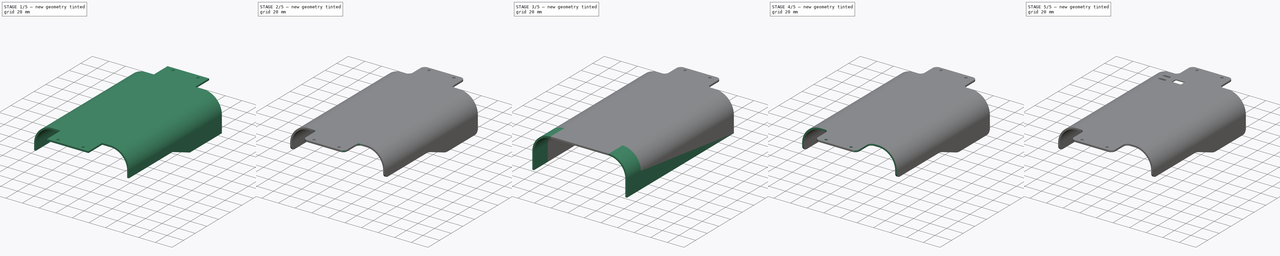
[diagram: build sequence overview — one tinted view per stage of 5, left to right]
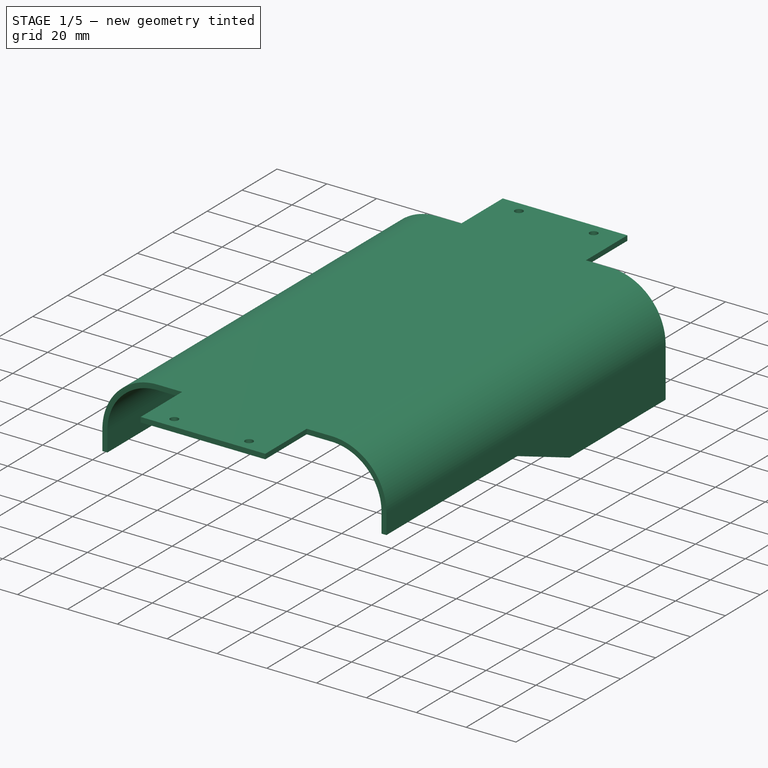
[diagram: stage 1 of 5 — iso view after this stage's code; geometry added in this stage tinted green]
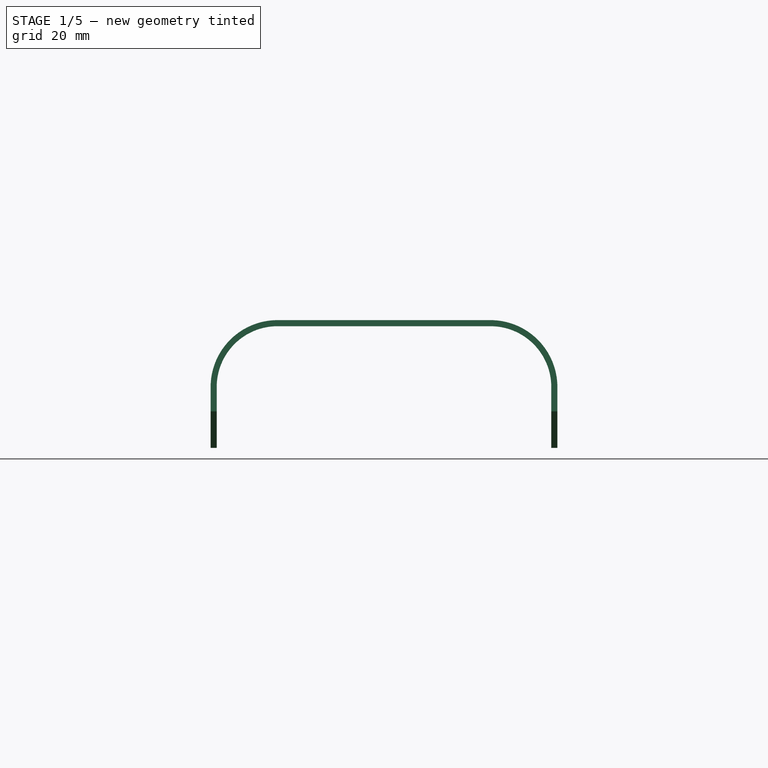
[diagram: stage 1 of 5 — front view after this stage's code; geometry added in this stage tinted green]
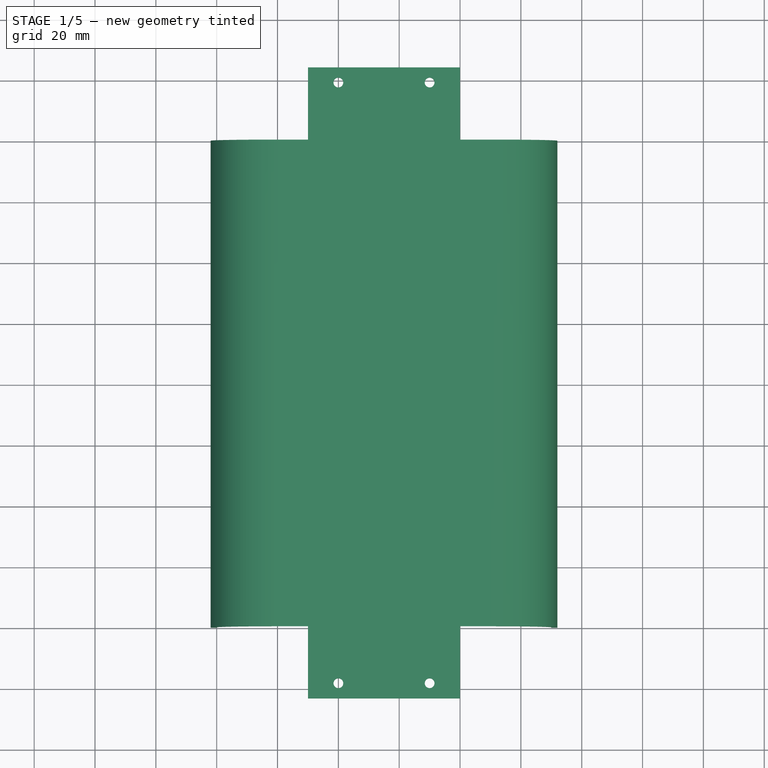
[diagram: stage 1 of 5 — top view after this stage's code; geometry added in this stage tinted green]
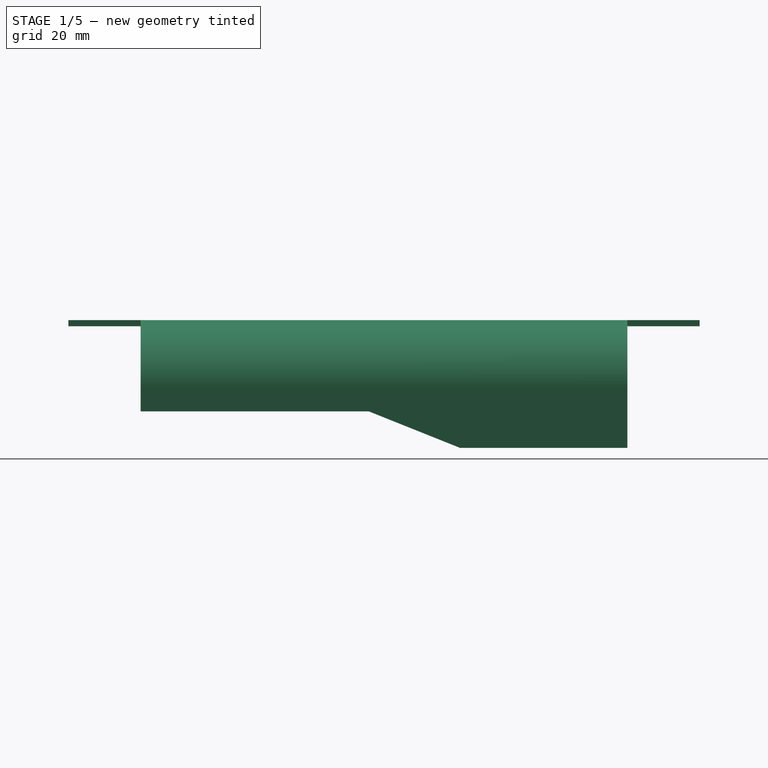
[diagram: stage 1 of 5 — right view after this stage's code; geometry added in this stage tinted green]
FCSTD DOCUMENT  (FreeCAD 0.18R4 (GitTag))
Label: Top_Cover_Split_Rear
License: CreativeCommons Attribution-NonCommercial
LicenseURL: http://creativecommons.org/licenses/by-nc/4.0/
objects: Sketcher::SketchObject×21, PartDesign::Pocket×17, PartDesign::Pad×8, PartDesign::Fillet×8, PartDesign::Thickness×2, PartDesign::Body×2
note: 83 computed .brp shape members not serialized (recipe doc carries the construction recipe); baked Part::Feature solids carry a one-line shape summary decoded from their .brp

FEATURE [PartDesign::Body] Body145  label="Top_Cover_Split_Rear (Template)"
  Group = -> [Sketch420,Pad216,Thickness001,Pad213,Pad215,Sketch424,Pocket204,Sketch416,Pocket206,Sketch423,Pocket203,Fillet005,Fillet071,Sketch418,Pad214,Fillet069,Fillet070,Sketch419,Pocket202,Sketch422,Pocket200,Sketch421,Pocket201,Sketch437,Pocket216,Sketch441,Pocket217]
  Origin = -> Origin224
  Placement = pos=(55,80,2.25) rot=(0,0,1;3.14159rad)
  Tip = -> Pocket217
FEATURE [Sketcher::SketchObject] Sketch446
  AttachmentOffset = pos=(0,0,-108.85) rot=(0,0,1;0rad)
  MapMode = 5
  Placement = pos=(0,108.85,2.42e-14) rot=(1,0,0;1.5708rad)
  Support = -> [XZ_Plane225]
  sketch-geometry (14):
    g0: LineSegment StartX=0 StartY=20 StartZ=0 EndX=6.5 EndY=20 EndZ=0
    g1: LineSegment StartX=6.5 StartY=20 StartZ=0 EndX=6.5 EndY=34.7564 EndZ=0
    g2: LineSegment StartX=24.25 StartY=40 StartZ=0 EndX=24.25 EndY=33.5 EndZ=0
    g3: LineSegment StartX=24.25 StartY=33.5 StartZ=0 EndX=30.75 EndY=33.5 EndZ=0
    g4: LineSegment StartX=30.75 StartY=33.5 StartZ=0 EndX=30.75 EndY=40 EndZ=0
    g5: LineSegment StartX=30.75 StartY=40 StartZ=0 EndX=24.25 EndY=40 EndZ=0
    g6: LineSegment StartX=79.25 StartY=40 StartZ=0 EndX=79.25 EndY=33.5 EndZ=0
    g7: LineSegment StartX=79.25 StartY=33.5 StartZ=0 EndX=85.75 EndY=33.5 EndZ=0
    g8: LineSegment StartX=85.75 StartY=33.5 StartZ=0 EndX=85.75 EndY=40 EndZ=0
    g9: LineSegment StartX=85.75 StartY=40 StartZ=0 EndX=79.25 EndY=40 EndZ=0
    g10: LineSegment StartX=103.5 StartY=34.7564 StartZ=0 EndX=103.5 EndY=20 EndZ=0
    g11: LineSegment StartX=103.5 StartY=20 StartZ=0 EndX=110 EndY=20 EndZ=0
    g12: ArcOfCircle CenterX=20 CenterY=20 CenterZ=0 NormalX=0 NormalY=0 NormalZ=1 AngleXU=0 Radius=20 StartAngle=2.31176 EndAngle=3.14159
    g13: ArcOfCircle CenterX=90 CenterY=20 CenterZ=0 NormalX=0 NormalY=0 NormalZ=1 AngleXU=0 Radius=20 StartAngle=-9e-16 EndAngle=0.829832
  constraints (46):
    c: PointOnObject(g0,g-2)
    c: Horizontal(g0)
    c: Coincident(g0,g1)
    c: Vertical(g1)
    c: Coincident(g2,g3)
    c: Horizontal(g3)
    c: Coincident(g3,g4)
    c: Coincident(g4,g5)
    c: Horizontal(g5)
    c: Coincident(g6,g7)
    c: Coincident(g7,g8)
    c: Coincident(g8,g9)
    c: Coincident(g9,g6)
    c: Vertical(g10)
    c: Coincident(g10,g11)
    c: Horizontal(g11)
    c: Coincident(g12,g0)
    c: Coincident(g12,g1)
    c: Coincident(g13,g10)
    c: Coincident(g13,g11)
    c: Horizontal(g7)
    c: Horizontal(g9)
    c: Vertical(g8)
    c: Vertical(g6)
    c: Vertical(g4)
    c: Vertical(g2)
    c: Radius(g12) = 20
    c: Equal(g13,g12)
    c: DistanceX(g3,g3) = 6.5
    c: Equal(g0,g3)
    c: Equal(g3,g7)
    c: Equal(g7,g11)
    c: Horizontal(g0,g10)
    c: Horizontal(g6,g3)
    c: Equal(g4,g6)
    c: Perpendicular(g12,g0)
    c: Perpendicular(g13,g11)
    c: DistanceY(g-1,g0) = 20
    c: Coincident(g5,g2)
    c: Equal(g4,g5)
    c: DistanceX(g3,g6) = 48.5
    c: DistanceY(g-1,g8) = 40
    c: DistanceX(g-1,g2) = 24.25
    c: DistanceX(g0,g11) = 110
    c: DistanceX(g1,g2) = 17.75
    c: DistanceX(g7,g10) = 17.75
FEATURE [Sketcher::SketchObject] Sketch448
  MapMode = 5
  Placement = pos=(0,0,0) rot=(1,0,0;1.5708rad)
  Support = -> [XZ_Plane225]
  sketch-geometry (6):
    g0: LineSegment StartX=20 StartY=40 StartZ=0 EndX=90 EndY=40 EndZ=0
    g1: LineSegment StartX=110 StartY=20 StartZ=0 EndX=110 EndY=0 EndZ=0
    g2: LineSegment StartX=110 StartY=0 StartZ=0 EndX=0 EndY=0 EndZ=0
    g3: LineSegment StartX=0 StartY=0 StartZ=0 EndX=0 EndY=20 EndZ=0
    g4: ArcOfCircle CenterX=20 CenterY=20 CenterZ=0 NormalX=0 NormalY=0 NormalZ=1 AngleXU=0 Radius=20 StartAngle=1.5708 EndAngle=3.14159
    g5: ArcOfCircle CenterX=90 CenterY=20 CenterZ=0 NormalX=0 NormalY=0 NormalZ=1 AngleXU=0 Radius=20 StartAngle=0 EndAngle=1.5708
  constraints (15):
    c: Coincident(g1,g2)
    c: Coincident(g2,g3)
    c: Horizontal(g0)
    c: Horizontal(g2)
    c: Vertical(g1)
    c: Vertical(g3)
    c: Tangent(g3,g4) = 1.5708
    c: Tangent(g0,g4) = 1.5708
    c: Tangent(g0,g5) = 1.5708
    c: Tangent(g1,g5) = 1.5708
    c: DistanceX(g2,g2) = 110
    c: Equal(g5,g4)
    c: Radius(g4) = 20
    c: Coincident(g2,g-1)
    c: DistanceY(g2,g0) = 40
FEATURE [PartDesign::Pad] Pad220  label="Baseplate022"
  Length = 160
  Length2 = 100
  Placement = pos=(0,0,0) rot=(1,0,0;1.5708rad)
  Profile = -> Sketch448
  Reversed = true
  Type = 0
FEATURE [PartDesign::Thickness] Thickness002
  Base = -> Pad220 [Face7,Face8,Face2]
  BaseFeature = -> Pad220
  Join = 0
  Mode = 0
  Value = 2
FEATURE [PartDesign::Pad] Pad218  label="Front Expansion002"
  BaseFeature = -> Thickness002
  Length = 23.75
  Length2 = 100
  Profile = -> Thickness002 [Face6]
  Type = 0
FEATURE [PartDesign::Pad] Pad219  label="Rear Expansion002"
  BaseFeature = -> Pad218
  Length = 23.75
  Length2 = 100
  Profile = -> Pad218 [Face5]
  Type = 0
FEATURE [Sketcher::SketchObject] Sketch449
  MapMode = 5
  Placement = pos=(0,-9.2e-15,42) rot=(0,0,1;0rad)
  Support = -> [Pad219]
  sketch-geometry (16):
    g0: LineSegment StartX=-2 StartY=0 StartZ=0 EndX=30 EndY=0 EndZ=0
    g1: LineSegment StartX=30 StartY=0 StartZ=0 EndX=30 EndY=-23.75 EndZ=0
    g2: LineSegment StartX=30 StartY=-23.75 StartZ=0 EndX=-2 EndY=-23.75 EndZ=0
    g3: LineSegment StartX=-2 StartY=-23.75 StartZ=0 EndX=-2 EndY=0 EndZ=0
    g4: LineSegment StartX=112 StartY=0 StartZ=0 EndX=80 EndY=0 EndZ=0
    g5: LineSegment StartX=80 StartY=0 StartZ=0 EndX=80 EndY=-23.75 EndZ=0
    g6: LineSegment StartX=80 StartY=-23.75 StartZ=0 EndX=112 EndY=-23.75 EndZ=0
    g7: LineSegment StartX=112 StartY=-23.75 StartZ=0 EndX=112 EndY=0 EndZ=0
    g8: LineSegment StartX=-2 StartY=160 StartZ=0 EndX=30 EndY=160 EndZ=0
    g9: LineSegment StartX=30 StartY=160 StartZ=0 EndX=30 EndY=183.75 EndZ=0
    g10: LineSegment StartX=30 StartY=183.75 StartZ=0 EndX=-2 EndY=183.75 EndZ=0
    g11: LineSegment StartX=-2 StartY=183.75 StartZ=0 EndX=-2 EndY=160 EndZ=0
    g12: LineSegment StartX=112 StartY=183.75 StartZ=0 EndX=80 EndY=183.75 EndZ=0
    g13: LineSegment StartX=80 StartY=183.75 StartZ=0 EndX=80 EndY=160 EndZ=0
    g14: LineSegment StartX=80 StartY=160 StartZ=0 EndX=112 EndY=160 EndZ=0
    g15: LineSegment StartX=112 StartY=160 StartZ=0 EndX=112 EndY=183.75 EndZ=0
  constraints (48):
    c: Coincident(g0,g1)
    c: Coincident(g1,g2)
    c: Coincident(g2,g3)
    c: Coincident(g3,g0)
    c: Horizontal(g0)
    c: Horizontal(g2)
    c: Vertical(g1)
    c: Vertical(g3)
    c: PointOnObject(g0,g-1)
    c: Coincident(g4,g5)
    c: Coincident(g5,g6)
    c: Coincident(g6,g7)
    c: Coincident(g7,g4)
    c: Horizontal(g4)
    c: Horizontal(g6)
    c: Vertical(g5)
    c: Vertical(g7)
    c: Coincident(g8,g9)
    c: Coincident(g9,g10)
    c: Coincident(g10,g11)
    c: Coincident(g11,g8)
    c: Horizontal(g8)
    c: Horizontal(g10)
    c: Vertical(g9)
    c: Vertical(g11)
    c: Coincident(g12,g13)
    c: Coincident(g13,g14)
    c: Coincident(g14,g15)
    c: Coincident(g15,g12)
    c: Horizontal(g12)
    c: Horizontal(g14)
    c: Vertical(g13)
    c: Vertical(g15)
    c: Horizontal(g9,g12)
    c: Equal(g9,g13)
    c: Equal(g10,g12)
    c: Equal(g0,g8)
    c: Equal(g4,g14)
    c: Horizontal(g0,g4)
    c: Equal(g5,g1)
    c: DistanceX(g0,g4) = 50
    c: DistanceX(g0,g0) = 32
    c: DistanceY(g3,g3) = 23.75
    c: DistanceX(g0,g-1) = 2
    c: Vertical(g0,g8)
    c: Vertical(g13,g4)
    c: DistanceY(g0,g8) = 160
    c: Equal(g9,g1)
FEATURE [PartDesign::Pocket] Pocket219  label="Shoulders002"
  BaseFeature = -> Pad219
  Length = 42
  Length2 = 100
  Profile = -> Sketch449
  Type = 0
FEATURE [Sketcher::SketchObject] Sketch447
  MapMode = 5
  Placement = pos=(112,0,0) rot=(0.57735,0.57735,0.57735;2.0944rad)
  Support = -> [Pocket219]
  sketch-geometry (6):
    g0: LineSegment StartX=0 StartY=-5 StartZ=0 EndX=-2e-16 EndY=12 EndZ=0
    g1: LineSegment StartX=-2e-16 StartY=12 StartZ=0 EndX=75 EndY=12 EndZ=0
    g2: LineSegment StartX=75 StartY=12 StartZ=0 EndX=105 EndY=0 EndZ=0
    g3: LineSegment StartX=105 StartY=0 StartZ=0 EndX=160 EndY=0 EndZ=0
    g4: LineSegment StartX=160 StartY=0 StartZ=0 EndX=160 EndY=-5 EndZ=0
    g5: LineSegment StartX=160 StartY=-5 StartZ=0 EndX=0 EndY=-5 EndZ=0
  constraints (18):
    c: PointOnObject(g0,g-2)
    c: Coincident(g0,g1)
    c: Horizontal(g1)
    c: Coincident(g1,g2)
    c: PointOnObject(g2,g-1)
    c: Coincident(g2,g3)
    c: Horizontal(g3)
    c: Coincident(g3,g4)
    c: Vertical(g4)
    c: Coincident(g4,g5)
    c: PointOnObject(g5,g-2)
    c: Horizontal(g5)
    c: Coincident(g0,g5)
    c: DistanceX(g1,g2) = 30
    c: DistanceX(g5,g5) = 160
    c: DistanceX(g1,g1) = 75
    c: DistanceY(g-1,g0) = 12
    c: DistanceY(g4,g4) = 5
FEATURE [PartDesign::Pocket] Pocket220  label="Side Detailing002"
  BaseFeature = -> Pocket219
  Length = 114
  Length2 = 100
  Profile = -> Sketch447
  Type = 0
FEATURE [Sketcher::SketchObject] Sketch450
  MapMode = 5
  Placement = pos=(0,-9.2e-15,42) rot=(0,0,1;0rad)
  Support = -> [Pocket220]
  sketch-geometry (4):
    g0: Circle CenterX=40 CenterY=-18.75 CenterZ=0 NormalX=0 NormalY=0 NormalZ=1 AngleXU=0 Radius=1.6
    g1: Circle CenterX=70 CenterY=-18.75 CenterZ=0 NormalX=0 NormalY=0 NormalZ=1 AngleXU=0 Radius=1.6
    g2: Circle CenterX=40 CenterY=178.75 CenterZ=0 NormalX=0 NormalY=0 NormalZ=1 AngleXU=0 Radius=1.6
    g3: Circle CenterX=70 CenterY=178.75 CenterZ=0 NormalX=0 NormalY=0 NormalZ=1 AngleXU=0 Radius=1.6
  constraints (12):
    c: DistanceX(g2,g3) = 30
    c: Equal(g2,g3)
    c: Equal(g3,g0)
    c: Equal(g0,g1)
    c: Horizontal(g2,g3)
    c: Horizontal(g0,g1)
    c: Vertical(g1,g3)
    c: Vertical(g0,g2)
    c: DistanceY(g0,g-1) = 18.75
    c: DistanceX(g-1,g0) = 40
    c: DistanceY(g-1,g2) = 178.75
    c: Radius(g3) = 1.6
FEATURE [PartDesign::Pocket] Pocket218  label="Screwholes002"
  BaseFeature = -> Pocket220
  Length = 2
  Length2 = 100
  Profile = -> Sketch450
  Type = 0
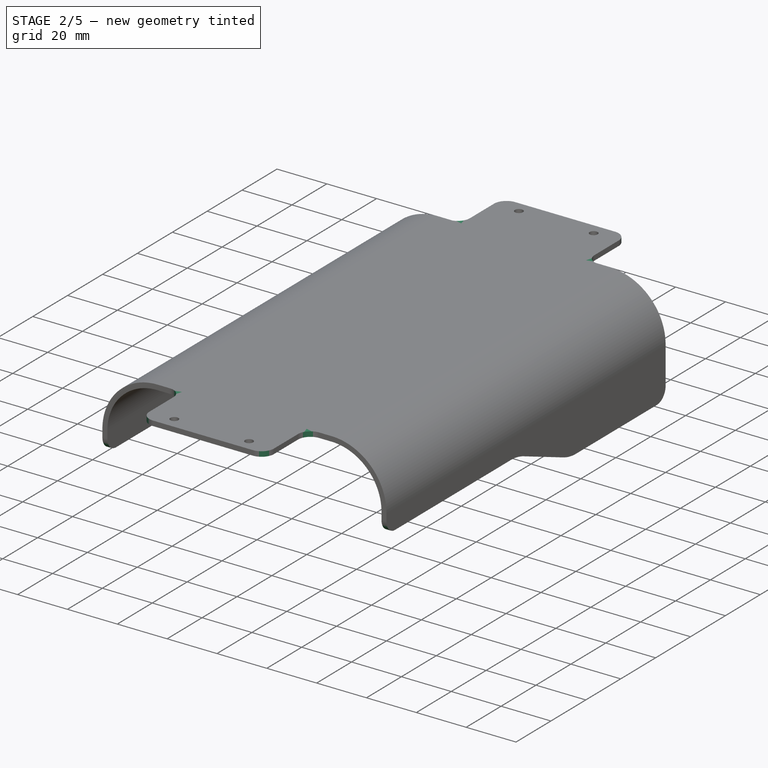
[diagram: stage 2 of 5 — iso view after this stage's code; geometry added in this stage tinted green]
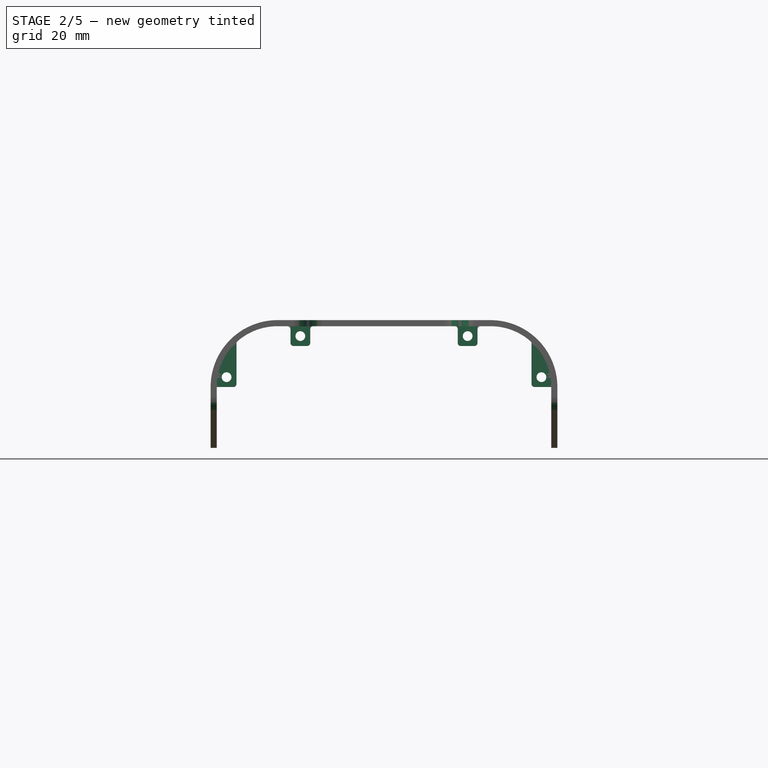
[diagram: stage 2 of 5 — front view after this stage's code; geometry added in this stage tinted green]
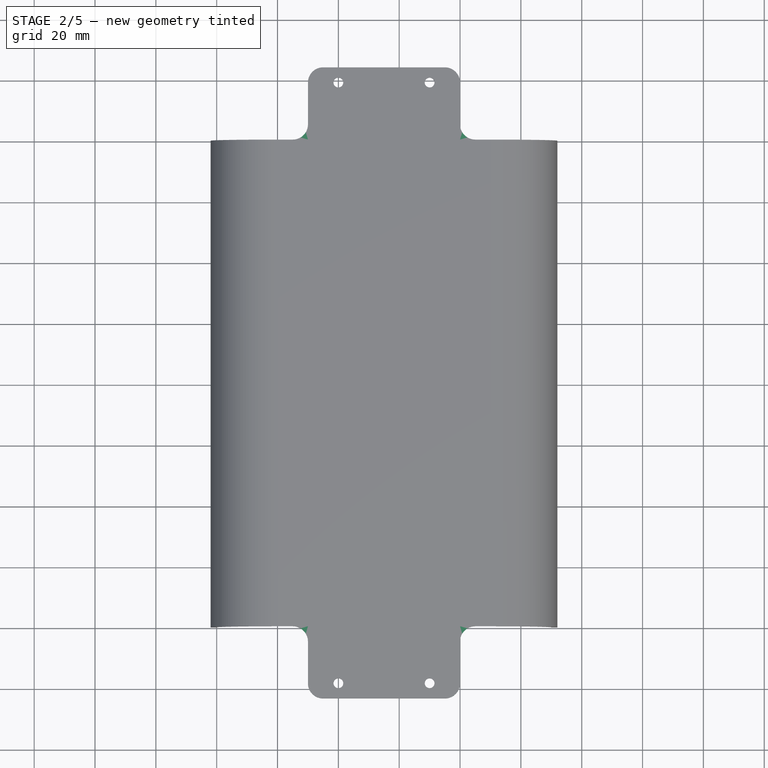
[diagram: stage 2 of 5 — top view after this stage's code; geometry added in this stage tinted green]
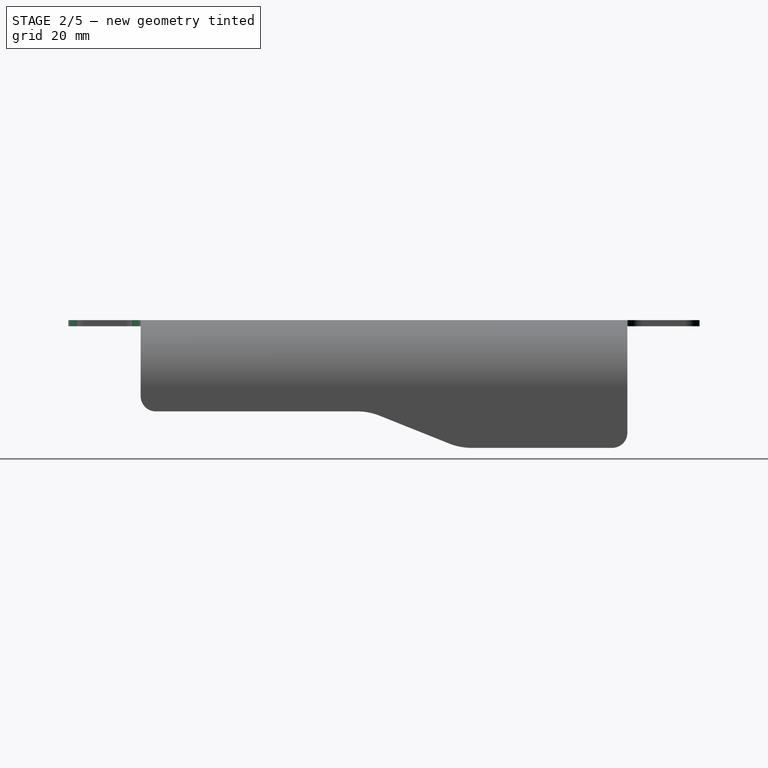
[diagram: stage 2 of 5 — right view after this stage's code; geometry added in this stage tinted green]
FEATURE [PartDesign::Fillet] Fillet072  label="Round Corners002"
  Base = -> Pocket218 [Edge35,Edge66,Edge48,Edge12,Edge18,Edge44,Edge25,Edge76,Edge57,Edge60,Edge45,Edge9]
  BaseFeature = -> Pocket218
  Radius = 5
FEATURE [PartDesign::Fillet] Fillet073  label="Round Side Details002"
  Base = -> Fillet072 [Edge21,Edge29,Edge131,Edge132]
  BaseFeature = -> Fillet072
  Radius = 20
FEATURE [PartDesign::Pad] Pad217  label="Screwpads002"
  BaseFeature = -> Fillet073
  Length = 5.5
  Length2 = 5.5
  Profile = -> Sketch446
  Type = 4
FEATURE [PartDesign::Fillet] Fillet074  label="Smooth Screwpad Edges002"
  Base = -> Pad217 [Edge35,Edge33,Edge137,Edge141,Edge145,Edge149,Edge182,Edge77,Edge73,Edge71,Edge75,Edge123]
  BaseFeature = -> Pad217
  Radius = 1
FEATURE [PartDesign::Fillet] Fillet075  label="Smooth Screwpad Edges Side Details002"
  Base = -> Fillet074 [Edge23,Edge202]
  BaseFeature = -> Fillet074
  Radius = 0.2
FEATURE [Sketcher::SketchObject] Sketch451
  MapMode = 5
  Placement = pos=(-8.12e-14,114.35,8.35e-14) rot=(0,0.707107,0.707107;3.14159rad)
  Support = -> [Fillet075]
  sketch-geometry (4):
    g0: Circle CenterX=-106.75 CenterY=23.25 CenterZ=0 NormalX=0 NormalY=0 NormalZ=1 AngleXU=0 Radius=1.6
    g1: Circle CenterX=-82.5 CenterY=36.75 CenterZ=0 NormalX=0 NormalY=0 NormalZ=1 AngleXU=0 Radius=1.6
    g2: Circle CenterX=-27.5 CenterY=36.75 CenterZ=0 NormalX=0 NormalY=0 NormalZ=1 AngleXU=0 Radius=1.6
    g3: Circle CenterX=-3.25 CenterY=23.25 CenterZ=0 NormalX=0 NormalY=0 NormalZ=1 AngleXU=0 Radius=1.6
  constraints (12):
    c: Equal(g0,g1)
    c: Equal(g1,g2)
    c: Equal(g2,g3)
    c: DistanceX(g1,g2) = 55
    c: DistanceX(g3,g-1) = 3.25
    c: DistanceY(g-1,g3) = 23.25
    c: DistanceX(g0,g3) = 103.5
    c: Horizontal(g3,g0)
    c: Horizontal(g1,g2)
    c: DistanceX(g2,g-1) = 27.5
    c: DistanceY(g-1,g2) = 36.75
    c: Radius(g3) = 1.6
FEATURE [PartDesign::Pocket] Pocket225  label="Screwholes Connection002"
  BaseFeature = -> Fillet075
  Length = 11
  Length2 = 100
  Profile = -> Sketch451
  Type = 0
FEATURE [Sketcher::SketchObject] Sketch445
  MapMode = 5
  Placement = pos=(-8.12e-14,114.35,8.35e-14) rot=(0,0.707107,0.707107;3.14159rad)
  Support = -> [Pocket225]
  sketch-geometry (4):
    g0: Circle CenterX=-106.75 CenterY=23.25 CenterZ=0 NormalX=0 NormalY=0 NormalZ=1 AngleXU=0 Radius=2.85
    g1: Circle CenterX=-82.5 CenterY=36.75 CenterZ=0 NormalX=0 NormalY=0 NormalZ=1 AngleXU=0 Radius=2.85
    g2: Circle CenterX=-27.5 CenterY=36.75 CenterZ=0 NormalX=0 NormalY=0 NormalZ=1 AngleXU=0 Radius=2.85
    g3: Circle CenterX=-3.25 CenterY=23.25 CenterZ=0 NormalX=0 NormalY=0 NormalZ=1 AngleXU=0 Radius=2.85
  constraints (12):
    c: Equal(g0,g1)
    c: Equal(g1,g2)
    c: Equal(g2,g3)
    c: Radius(g3) = 2.85
    c: DistanceX(g3,g-1) = 3.25
    c: Horizontal(g3,g0)
    c: Horizontal(g1,g2)
    c: DistanceX(g0,g3) = 103.5
    c: DistanceX(g1,g2) = 55
    c: DistanceY(g-1,g2) = 36.75
    c: DistanceX(g2,g-1) = 27.5
    c: DistanceY(g-1,g3) = 23.25
FEATURE [PartDesign::Pocket] Pocket222  label="Screwheads Connection002"
  BaseFeature = -> Pocket225
  Length = 3
  Length2 = 100
  Profile = -> Sketch445
  Type = 0
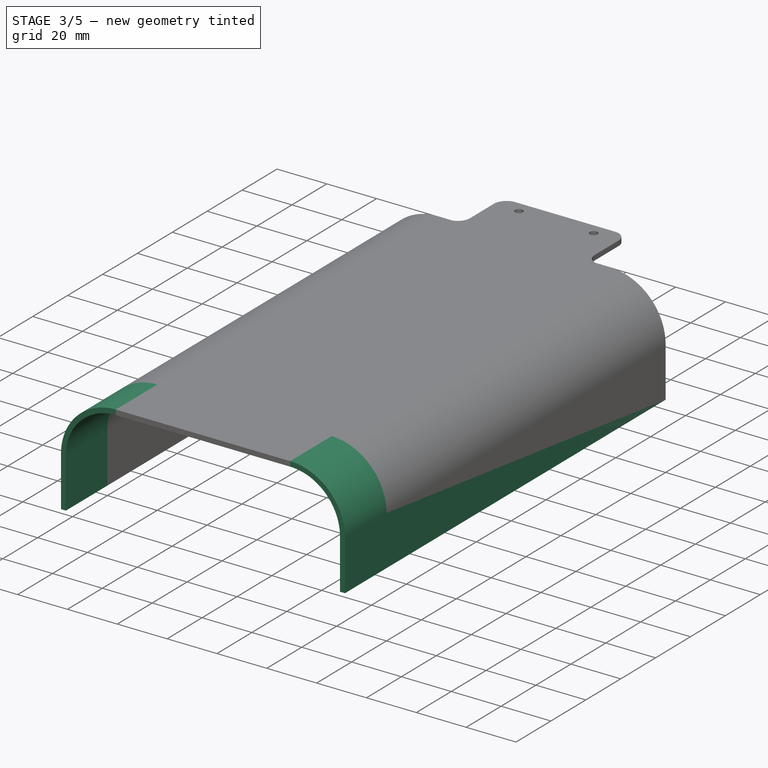
[diagram: stage 3 of 5 — iso view after this stage's code; geometry added in this stage tinted green]
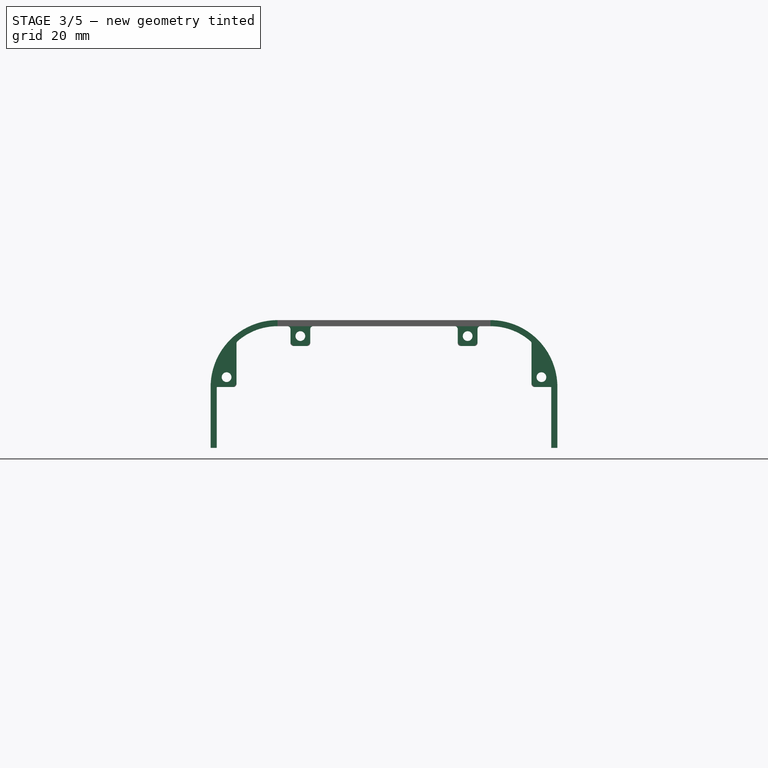
[diagram: stage 3 of 5 — front view after this stage's code; geometry added in this stage tinted green]
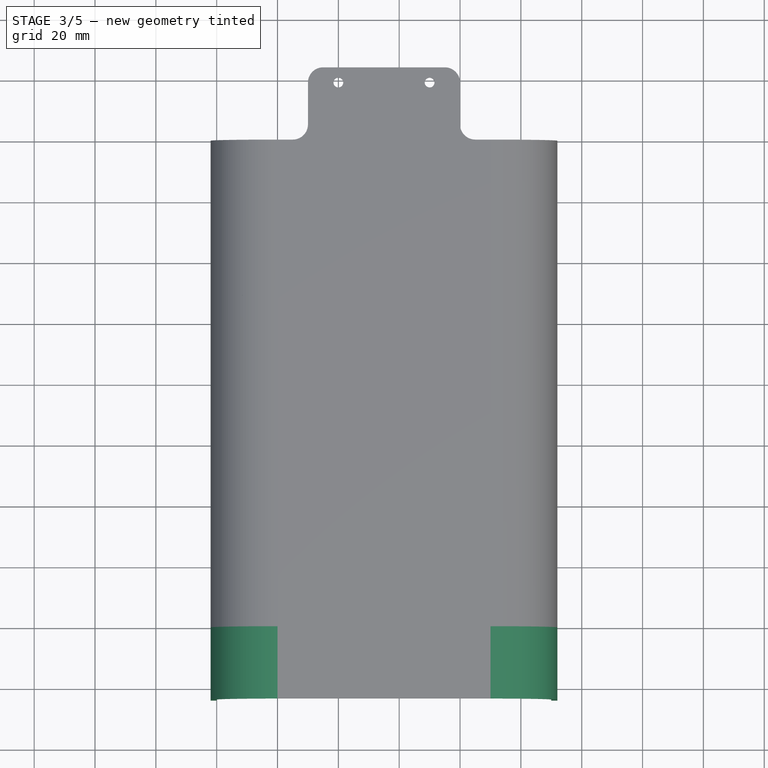
[diagram: stage 3 of 5 — top view after this stage's code; geometry added in this stage tinted green]
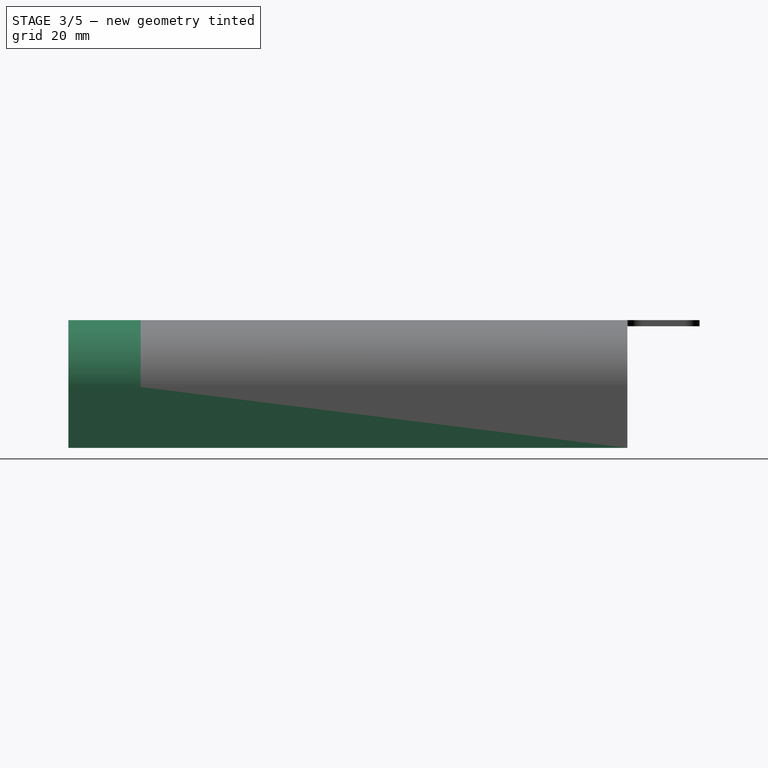
[diagram: stage 3 of 5 — right view after this stage's code; geometry added in this stage tinted green]
FEATURE [Sketcher::SketchObject] Sketch418
  AttachmentOffset = pos=(0,0,-108.85) rot=(0,0,1;0rad)
  MapMode = 5
  Placement = pos=(0,108.85,2.42e-14) rot=(1,0,0;1.5708rad)
  Support = -> [XZ_Plane224]
  sketch-geometry (14):
    g0: LineSegment StartX=0 StartY=20 StartZ=0 EndX=6.5 EndY=20 EndZ=0
    g1: LineSegment StartX=6.5 StartY=20 StartZ=0 EndX=6.5 EndY=34.7564 EndZ=0
    g2: LineSegment StartX=24.25 StartY=40 StartZ=0 EndX=24.25 EndY=33.5 EndZ=0
    g3: LineSegment StartX=24.25 StartY=33.5 StartZ=0 EndX=30.75 EndY=33.5 EndZ=0
    g4: LineSegment StartX=30.75 StartY=33.5 StartZ=0 EndX=30.75 EndY=40 EndZ=0
    g5: LineSegment StartX=30.75 StartY=40 StartZ=0 EndX=24.25 EndY=40 EndZ=0
    g6: LineSegment StartX=79.25 StartY=40 StartZ=0 EndX=79.25 EndY=33.5 EndZ=0
    g7: LineSegment StartX=79.25 StartY=33.5 StartZ=0 EndX=85.75 EndY=33.5 EndZ=0
    g8: LineSegment StartX=85.75 StartY=33.5 StartZ=0 EndX=85.75 EndY=40 EndZ=0
    g9: LineSegment StartX=85.75 StartY=40 StartZ=0 EndX=79.25 EndY=40 EndZ=0
    g10: LineSegment StartX=103.5 StartY=34.7564 StartZ=0 EndX=103.5 EndY=20 EndZ=0
    g11: LineSegment StartX=103.5 StartY=20 StartZ=0 EndX=110 EndY=20 EndZ=0
    g12: ArcOfCircle CenterX=20 CenterY=20 CenterZ=0 NormalX=0 NormalY=0 NormalZ=1 AngleXU=0 Radius=20 StartAngle=2.31176 EndAngle=3.14159
    g13: ArcOfCircle CenterX=90 CenterY=20 CenterZ=0 NormalX=0 NormalY=0 NormalZ=1 AngleXU=0 Radius=20 StartAngle=-9e-16 EndAngle=0.829832
  constraints (46):
    c: PointOnObject(g0,g-2)
    c: Horizontal(g0)
    c: Coincident(g0,g1)
    c: Vertical(g1)
    c: Coincident(g2,g3)
    c: Horizontal(g3)
    c: Coincident(g3,g4)
    c: Coincident(g4,g5)
    c: Horizontal(g5)
    c: Coincident(g6,g7)
    c: Coincident(g7,g8)
    c: Coincident(g8,g9)
    c: Coincident(g9,g6)
    c: Vertical(g10)
    c: Coincident(g10,g11)
    c: Horizontal(g11)
    c: Coincident(g12,g0)
    c: Coincident(g12,g1)
    c: Coincident(g13,g10)
    c: Coincident(g13,g11)
    c: Horizontal(g7)
    c: Horizontal(g9)
    c: Vertical(g8)
    c: Vertical(g6)
    c: Vertical(g4)
    c: Vertical(g2)
    c: Radius(g12) = 20
    c: Equal(g13,g12)
    c: DistanceX(g3,g3) = 6.5
    c: Equal(g0,g3)
    c: Equal(g3,g7)
    c: Equal(g7,g11)
    c: Horizontal(g0,g10)
    c: Horizontal(g6,g3)
    c: Equal(g4,g6)
    c: Perpendicular(g12,g0)
    c: Perpendicular(g13,g11)
    c: DistanceY(g-1,g0) = 20
    c: Coincident(g5,g2)
    c: Equal(g4,g5)
    c: DistanceX(g3,g6) = 48.5
    c: DistanceY(g-1,g8) = 40
    c: DistanceX(g-1,g2) = 24.25
    c: DistanceX(g0,g11) = 110
    c: DistanceX(g1,g2) = 17.75
    c: DistanceX(g7,g10) = 17.75
FEATURE [Sketcher::SketchObject] Sketch420
  MapMode = 5
  Placement = pos=(0,0,0) rot=(1,0,0;1.5708rad)
  Support = -> [XZ_Plane224]
  sketch-geometry (6):
    g0: LineSegment StartX=20 StartY=40 StartZ=0 EndX=90 EndY=40 EndZ=0
    g1: LineSegment StartX=110 StartY=20 StartZ=0 EndX=110 EndY=0 EndZ=0
    g2: LineSegment StartX=110 StartY=0 StartZ=0 EndX=0 EndY=0 EndZ=0
    g3: LineSegment StartX=0 StartY=0 StartZ=0 EndX=0 EndY=20 EndZ=0
    g4: ArcOfCircle CenterX=20 CenterY=20 CenterZ=0 NormalX=0 NormalY=0 NormalZ=1 AngleXU=0 Radius=20 StartAngle=1.5708 EndAngle=3.14159
    g5: ArcOfCircle CenterX=90 CenterY=20 CenterZ=0 NormalX=0 NormalY=0 NormalZ=1 AngleXU=0 Radius=20 StartAngle=0 EndAngle=1.5708
  constraints (15):
    c: Coincident(g1,g2)
    c: Coincident(g2,g3)
    c: Horizontal(g0)
    c: Horizontal(g2)
    c: Vertical(g1)
    c: Vertical(g3)
    c: Tangent(g3,g4) = 1.5708
    c: Tangent(g0,g4) = 1.5708
    c: Tangent(g0,g5) = 1.5708
    c: Tangent(g1,g5) = 1.5708
    c: DistanceX(g2,g2) = 110
    c: Equal(g5,g4)
    c: Radius(g4) = 20
    c: Coincident(g2,g-1)
    c: DistanceY(g2,g0) = 40
FEATURE [PartDesign::Pad] Pad216  label="Baseplate021"
  Length = 160
  Length2 = 100
  Placement = pos=(0,0,0) rot=(1,0,0;1.5708rad)
  Profile = -> Sketch420
  Reversed = true
  Type = 0
FEATURE [PartDesign::Thickness] Thickness001
  Base = -> Pad216 [Face7,Face8,Face2]
  BaseFeature = -> Pad216
  Join = 0
  Mode = 0
  Value = 2
FEATURE [PartDesign::Pad] Pad213  label="Front Expansion001"
  BaseFeature = -> Thickness001
  Length = 23.75
  Length2 = 100
  Profile = -> Thickness001 [Face6]
  Type = 0
FEATURE [Sketcher::SketchObject] Sketch444
  MapMode = 5
  Placement = pos=(7.34e-14,103.35,7.54e-14) rot=(1,0,0;1.5708rad)
  Support = -> [Pocket222]
  sketch-geometry (28):
    g0: LineSegment StartX=3.25 StartY=26.5986 StartZ=0 EndX=0.35 EndY=24.9243 EndZ=0
    g1: LineSegment StartX=0.35 StartY=24.9243 StartZ=0 EndX=0.35 EndY=21.5757 EndZ=0
    g2: LineSegment StartX=0.35 StartY=21.5757 StartZ=0 EndX=3.25 EndY=19.9014 EndZ=0
    g3: LineSegment StartX=3.25 StartY=19.9014 StartZ=0 EndX=6.15 EndY=21.5757 EndZ=0
    g4: LineSegment StartX=6.15 StartY=21.5757 StartZ=0 EndX=6.15 EndY=24.9243 EndZ=0
    g5: LineSegment StartX=6.15 StartY=24.9243 StartZ=0 EndX=3.25 EndY=26.5986 EndZ=0
    g6: Circle [constr] CenterX=3.25 CenterY=23.25 CenterZ=0 NormalX=0 NormalY=0 NormalZ=1 AngleXU=0 Radius=3.34863
    g7: LineSegment StartX=27.5 StartY=40.0986 StartZ=0 EndX=24.6 EndY=38.4243 EndZ=0
    g8: LineSegment StartX=24.6 StartY=38.4243 StartZ=0 EndX=24.6 EndY=35.0757 EndZ=0
    g9: LineSegment StartX=24.6 StartY=35.0757 StartZ=0 EndX=27.5 EndY=33.4014 EndZ=0
    g10: LineSegment StartX=27.5 StartY=33.4014 StartZ=0 EndX=30.4 EndY=35.0757 EndZ=0
    g11: LineSegment StartX=30.4 StartY=35.0757 StartZ=0 EndX=30.4 EndY=38.4243 EndZ=0
    g12: LineSegment StartX=30.4 StartY=38.4243 StartZ=0 EndX=27.5 EndY=40.0986 EndZ=0
    g13: Circle [constr] CenterX=27.5 CenterY=36.75 CenterZ=0 NormalX=0 NormalY=0 NormalZ=1 AngleXU=0 Radius=3.34863
    g14: LineSegment StartX=85.4 StartY=38.4243 StartZ=0 EndX=82.5 EndY=40.0986 EndZ=0
    g15: LineSegment StartX=82.5 StartY=40.0986 StartZ=0 EndX=79.6 EndY=38.4243 EndZ=0
    g16: LineSegment StartX=79.6 StartY=38.4243 StartZ=0 EndX=79.6 EndY=35.0757 EndZ=0
    g17: LineSegment StartX=79.6 StartY=35.0757 StartZ=0 EndX=82.5 EndY=33.4014 EndZ=0
    g18: LineSegment StartX=82.5 StartY=33.4014 StartZ=0 EndX=85.4 EndY=35.0757 EndZ=0
    g19: LineSegment StartX=85.4 StartY=35.0757 StartZ=0 EndX=85.4 EndY=38.4243 EndZ=0
    g20: Circle [constr] CenterX=82.5 CenterY=36.75 CenterZ=0 NormalX=0 NormalY=0 NormalZ=1 AngleXU=0 Radius=3.34863
    g21: LineSegment StartX=106.75 StartY=26.5986 StartZ=0 EndX=103.85 EndY=24.9243 EndZ=0
    g22: LineSegment StartX=103.85 StartY=24.9243 StartZ=0 EndX=103.85 EndY=21.5757 EndZ=0
    g23: LineSegment StartX=103.85 StartY=21.5757 StartZ=0 EndX=106.75 EndY=19.9014 EndZ=0
    g24: LineSegment StartX=106.75 StartY=19.9014 StartZ=0 EndX=109.65 EndY=21.5757 EndZ=0
    g25: LineSegment StartX=109.65 StartY=21.5757 StartZ=0 EndX=109.65 EndY=24.9243 EndZ=0
    g26: LineSegment StartX=109.65 StartY=24.9243 StartZ=0 EndX=106.75 EndY=26.5986 EndZ=0
    g27: Circle [constr] CenterX=106.75 CenterY=23.25 CenterZ=0 NormalX=0 NormalY=0 NormalZ=1 AngleXU=0 Radius=3.34863
  constraints (68):
    c: Coincident(g0,g1)
    c: Coincident(g1,g2)
    c: Coincident(g2,g3)
    c: Coincident(g3,g4)
    c: Coincident(g4,g5)
    c: Coincident(g5,g0)
    c: Equal(g0, g1-g5) x5
    c: PointOnObject(g0,g6)
    c: PointOnObject(g1,g6)
    c: PointOnObject(g2,g6)
    c: PointOnObject(g3,g6)
    c: PointOnObject(g4,g6)
    c: PointOnObject(g5,g6)
    c: Coincident(g7,g8)
    c: Coincident(g8,g9)
    c: Coincident(g9,g10)
    c: Coincident(g10,g11)
    c: Coincident(g11,g12)
    c: Coincident(g12,g7)
    c: Equal(g7, g8-g12) x5
    c: PointOnObject(g7,g13)
    c: PointOnObject(g8,g13)
    c: PointOnObject(g9,g13)
    c: PointOnObject(g10,g13)
    c: PointOnObject(g11,g13)
    c: PointOnObject(g12,g13)
    c: Coincident(g14,g15)
    c: Coincident(g15,g16)
    c: Coincident(g16,g17)
    c: Coincident(g17,g18)
    c: Coincident(g18,g19)
    c: Coincident(g19,g14)
    c: Equal(g14, g15-g19) x5
    c: PointOnObject(g14,g20)
    c: PointOnObject(g15,g20)
    c: PointOnObject(g16,g20)
    c: PointOnObject(g17,g20)
    c: PointOnObject(g18,g20)
    c: PointOnObject(g19,g20)
    c: Coincident(g21,g22)
    c: Coincident(g22,g23)
    c: Coincident(g23,g24)
    c: Coincident(g24,g25)
    c: Coincident(g25,g26)
    c: Coincident(g26,g21)
    c: Equal(g21, g22-g26) x5
    c: PointOnObject(g21,g27)
    c: PointOnObject(g22,g27)
    c: PointOnObject(g23,g27)
    c: PointOnObject(g24,g27)
    c: PointOnObject(g25,g27)
    c: PointOnObject(g26,g27)
    c: Equal(g6,g13)
    c: Equal(g13,g20)
    c: Equal(g20,g27)
    c: Vertical(g22)
    c: Vertical(g19)
    c: Vertical(g11)
    c: Vertical(g4)
    c: Horizontal(g27,g6)
    c: Horizontal(g13,g20)
    c: DistanceX(g13,g20) = 55
    c: DistanceX(g6,g27) = 103.5
    c: DistanceX(g-1,g6) = 3.25
    c: DistanceY(g-1,g6) = 23.25
    c: DistanceY(g-1,g13) = 36.75
    c: DistanceX(g-1,g13) = 27.5
    c: DistanceX(g0,g4) = 5.8
FEATURE [PartDesign::Pocket] Pocket224  label="Nutholes Connection002"
  BaseFeature = -> Pocket222
  Length = 2.5
  Length2 = 100
  Profile = -> Sketch444
  Type = 0
FEATURE [Sketcher::SketchObject] Sketch442
  MapMode = 5
  Placement = pos=(0,0,42) rot=(0,0,1;0rad)
  Support = -> [Pocket224]
  sketch-geometry (12):
    g0: ArcOfCircle CenterX=20.8 CenterY=150 CenterZ=0 NormalX=0 NormalY=0 NormalZ=1 AngleXU=0 Radius=1.5 StartAngle=1.5708 EndAngle=4.71239
    g1: ArcOfCircle CenterX=26.8 CenterY=150 CenterZ=0 NormalX=0 NormalY=0 NormalZ=1 AngleXU=0 Radius=1.5 StartAngle=4.71239 EndAngle=7.85398
    g2: LineSegment StartX=20.8 StartY=148.5 StartZ=0 EndX=26.8 EndY=148.5 EndZ=0
    g3: LineSegment StartX=20.8 StartY=151.5 StartZ=0 EndX=26.8 EndY=151.5 EndZ=0
    g4: ArcOfCircle CenterX=20.8 CenterY=142 CenterZ=0 NormalX=0 NormalY=0 NormalZ=1 AngleXU=0 Radius=1.5 StartAngle=1.5708 EndAngle=4.71239
    g5: ArcOfCircle CenterX=26.8 CenterY=142 CenterZ=0 NormalX=0 NormalY=0 NormalZ=1 AngleXU=0 Radius=1.5 StartAngle=4.71239 EndAngle=7.85398
    g6: LineSegment StartX=20.8 StartY=140.5 StartZ=0 EndX=26.8 EndY=140.5 EndZ=0
    g7: LineSegment StartX=20.8 StartY=143.5 StartZ=0 EndX=26.8 EndY=143.5 EndZ=0
    g8: LineSegment StartX=35 StartY=142.5 StartZ=0 EndX=46 EndY=142.5 EndZ=0
    g9: LineSegment StartX=46 StartY=142.5 StartZ=0 EndX=46 EndY=149.5 EndZ=0
    g10: LineSegment StartX=46 StartY=149.5 StartZ=0 EndX=35 EndY=149.5 EndZ=0
    g11: LineSegment StartX=35 StartY=149.5 StartZ=0 EndX=35 EndY=142.5 EndZ=0
  constraints (32):
    c: Tangent(g0,g3) = 1.5708
    c: Tangent(g0,g2) = -1.5708
    c: Tangent(g2,g1) = -1.5708
    c: Tangent(g3,g1) = 1.5708
    c: Horizontal(g2)
    c: Equal(g0,g1)
    c: Tangent(g4,g7) = 1.5708
    c: Tangent(g4,g6) = -1.5708
    c: Tangent(g6,g5) = -1.5708
    c: Tangent(g7,g5) = 1.5708
    c: Horizontal(g6)
    c: Equal(g4,g5)
    c: Vertical(g4,g0)
    c: Vertical(g5,g1)
    c: Equal(g1,g5)
    c: Radius(g5) = 1.5
    c: DistanceX(g3,g3) = 6
    c: DistanceY(g5,g1) = 8
    c: DistanceY(g-1,g1) = 150
    c: DistanceX(g-1,g0) = 20.8
    c: Coincident(g8,g9)
    c: Coincident(g9,g10)
    c: Coincident(g10,g11)
    c: Coincident(g11,g8)
    c: Horizontal(g8)
    c: Horizontal(g10)
    c: Vertical(g9)
    c: Vertical(g11)
    c: DistanceX(g5,g8) = 8.2
    c: DistanceY(g11,g11) = 7
    c: DistanceX(g10,g10) = 11
    c: DistanceY(g5,g8) = 0.5
FEATURE [PartDesign::Pocket] Pocket221  label="Charger and USB-Port"
  BaseFeature = -> Pocket224
  Length = 5
  Length2 = 100
  Profile = -> Sketch442
  Type = 0
FEATURE [Sketcher::SketchObject] Sketch443
  MapMode = 5
  Placement = pos=(0,0,40) rot=(1,0,0;3.14159rad)
  Support = -> [Pocket221]
  sketch-geometry (4):
    g0: LineSegment StartX=32 StartY=-152.5 StartZ=0 EndX=49 EndY=-152.5 EndZ=0
    g1: LineSegment StartX=49 StartY=-152.5 StartZ=0 EndX=49 EndY=-139.5 EndZ=0
    g2: LineSegment StartX=49 StartY=-139.5 StartZ=0 EndX=32 EndY=-139.5 EndZ=0
    g3: LineSegment StartX=32 StartY=-139.5 StartZ=0 EndX=32 EndY=-152.5 EndZ=0
  constraints (12):
    c: Coincident(g0,g1)
    c: Coincident(g1,g2)
    c: Coincident(g2,g3)
    c: Coincident(g3,g0)
    c: Horizontal(g0)
    c: Horizontal(g2)
    c: Vertical(g1)
    c: Vertical(g3)
    c: DistanceY(g3,g3) = 13
    c: DistanceX(g0,g0) = 17
    c: DistanceX(g-1,g2) = 32
    c: DistanceY(g2,g-1) = 139.5
FEATURE [PartDesign::Pocket] Pocket223  label="Charger Alignment"
  BaseFeature = -> Pocket221
  Length = 1
  Length2 = 100
  Profile = -> Sketch443
  Type = 0
FEATURE [Sketcher::SketchObject] Sketch
  AttachmentOffset = pos=(0,0,-108.85) rot=(0,0,1;0rad)
  MapMode = 5
  Placement = pos=(0,108.85,2.42e-14) rot=(1,0,0;1.5708rad)
  Support = -> [XZ_Plane225]
  sketch-geometry (4):
    g0: LineSegment StartX=-2 StartY=0 StartZ=0 EndX=112 EndY=0 EndZ=0
    g1: LineSegment StartX=112 StartY=0 StartZ=0 EndX=112 EndY=42 EndZ=0
    g2: LineSegment StartX=112 StartY=42 StartZ=0 EndX=-2 EndY=42 EndZ=0
    g3: LineSegment StartX=-2 StartY=42 StartZ=0 EndX=-2 EndY=0 EndZ=0
  constraints (12):
    c: Coincident(g0,g1)
    c: Coincident(g1,g2)
    c: Coincident(g2,g3)
    c: Coincident(g3,g0)
    c: Horizontal(g0)
    c: Horizontal(g2)
    c: Vertical(g1)
    c: Vertical(g3)
    c: PointOnObject(g0,g-1)
    c: DistanceX(g0,g-1) = 2
    c: DistanceY(g3,g3) = 42
    c: DistanceX(g2,g2) = 114
FEATURE [PartDesign::Pocket] Pocket  label="Remove Front"
  BaseFeature = -> Pocket223
  Length = 200
  Length2 = 100
  Profile = -> Sketch
  Reversed = true
  Type = 0
FEATURE [PartDesign::Body] Body146  label="Top_Cover_Split_Rear"
  Group = -> [Sketch448,Pad220,Thickness002,Pad218,Pad219,Sketch449,Pocket219,Sketch447,Pocket220,Sketch450,Pocket218,Fillet072,Fillet073,Sketch446,Pad217,Fillet074,Fillet075,Sketch451,Pocket225,Sketch445,Pocket222,Sketch444,Pocket224,Sketch442,Pocket221,Sketch443,Pocket223,Sketch,Pocket]
  Origin = -> Origin225
  Placement = pos=(55,80,2.25) rot=(0,-0.707107,-0.707107;3.14159rad)
  Tip = -> Pocket
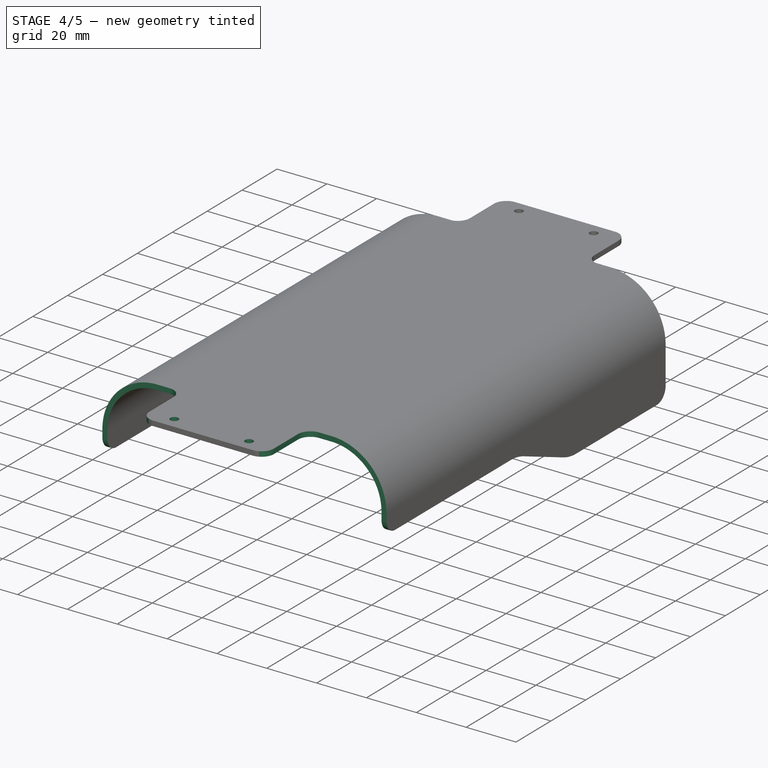
[diagram: stage 4 of 5 — iso view after this stage's code; geometry added in this stage tinted green]
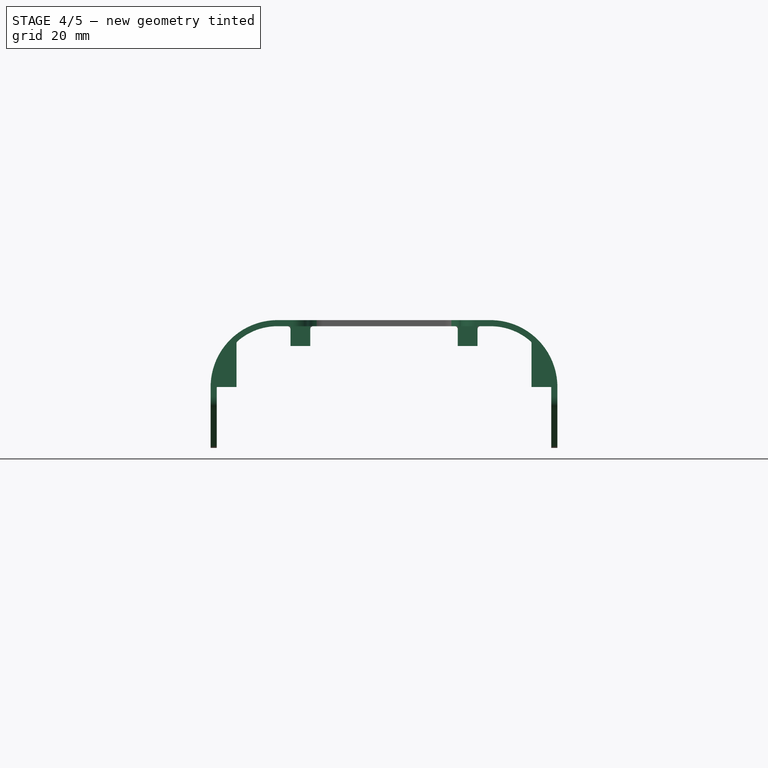
[diagram: stage 4 of 5 — front view after this stage's code; geometry added in this stage tinted green]
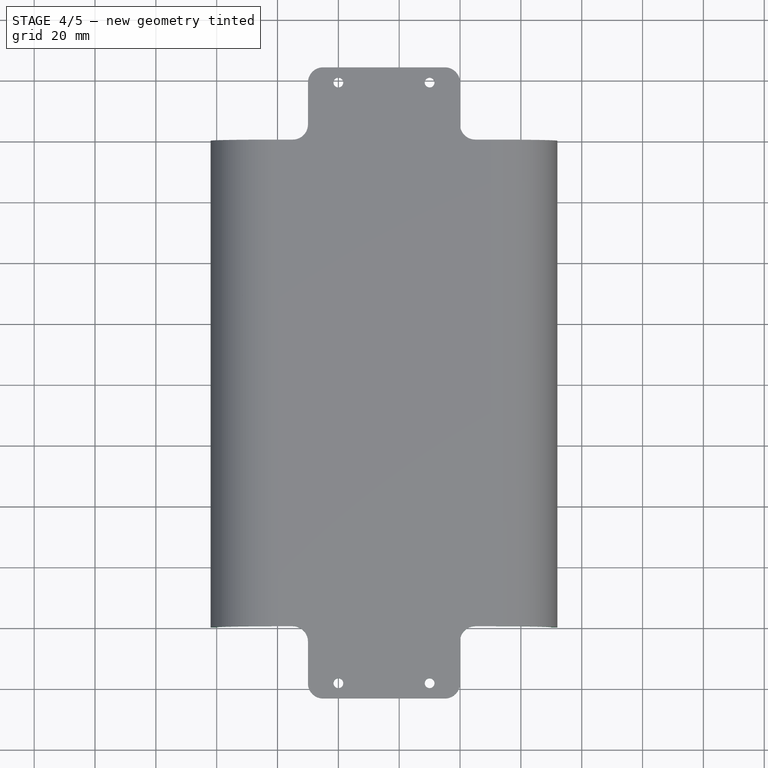
[diagram: stage 4 of 5 — top view after this stage's code; geometry added in this stage tinted green]
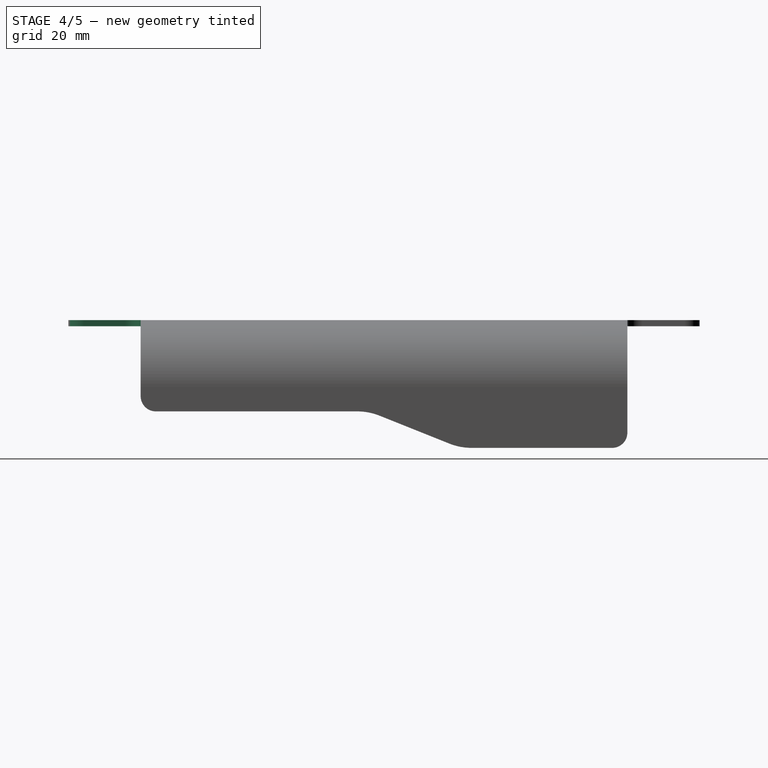
[diagram: stage 4 of 5 — right view after this stage's code; geometry added in this stage tinted green]
FEATURE [PartDesign::Pad] Pad215  label="Rear Expansion001"
  BaseFeature = -> Pad213
  Length = 23.75
  Length2 = 100
  Profile = -> Pad213 [Face5]
  Type = 0
FEATURE [Sketcher::SketchObject] Sketch424
  MapMode = 5
  Placement = pos=(0,-9.2e-15,42) rot=(0,0,1;0rad)
  Support = -> [Pad215]
  sketch-geometry (16):
    g0: LineSegment StartX=-2 StartY=0 StartZ=0 EndX=30 EndY=0 EndZ=0
    g1: LineSegment StartX=30 StartY=0 StartZ=0 EndX=30 EndY=-23.75 EndZ=0
    g2: LineSegment StartX=30 StartY=-23.75 StartZ=0 EndX=-2 EndY=-23.75 EndZ=0
    g3: LineSegment StartX=-2 StartY=-23.75 StartZ=0 EndX=-2 EndY=0 EndZ=0
    g4: LineSegment StartX=112 StartY=0 StartZ=0 EndX=80 EndY=0 EndZ=0
    g5: LineSegment StartX=80 StartY=0 StartZ=0 EndX=80 EndY=-23.75 EndZ=0
    g6: LineSegment StartX=80 StartY=-23.75 StartZ=0 EndX=112 EndY=-23.75 EndZ=0
    g7: LineSegment StartX=112 StartY=-23.75 StartZ=0 EndX=112 EndY=0 EndZ=0
    g8: LineSegment StartX=-2 StartY=160 StartZ=0 EndX=30 EndY=160 EndZ=0
    g9: LineSegment StartX=30 StartY=160 StartZ=0 EndX=30 EndY=183.75 EndZ=0
    g10: LineSegment StartX=30 StartY=183.75 StartZ=0 EndX=-2 EndY=183.75 EndZ=0
    g11: LineSegment StartX=-2 StartY=183.75 StartZ=0 EndX=-2 EndY=160 EndZ=0
    g12: LineSegment StartX=112 StartY=183.75 StartZ=0 EndX=80 EndY=183.75 EndZ=0
    g13: LineSegment StartX=80 StartY=183.75 StartZ=0 EndX=80 EndY=160 EndZ=0
    g14: LineSegment StartX=80 StartY=160 StartZ=0 EndX=112 EndY=160 EndZ=0
    g15: LineSegment StartX=112 StartY=160 StartZ=0 EndX=112 EndY=183.75 EndZ=0
  constraints (48):
    c: Coincident(g0,g1)
    c: Coincident(g1,g2)
    c: Coincident(g2,g3)
    c: Coincident(g3,g0)
    c: Horizontal(g0)
    c: Horizontal(g2)
    c: Vertical(g1)
    c: Vertical(g3)
    c: PointOnObject(g0,g-1)
    c: Coincident(g4,g5)
    c: Coincident(g5,g6)
    c: Coincident(g6,g7)
    c: Coincident(g7,g4)
    c: Horizontal(g4)
    c: Horizontal(g6)
    c: Vertical(g5)
    c: Vertical(g7)
    c: Coincident(g8,g9)
    c: Coincident(g9,g10)
    c: Coincident(g10,g11)
    c: Coincident(g11,g8)
    c: Horizontal(g8)
    c: Horizontal(g10)
    c: Vertical(g9)
    c: Vertical(g11)
    c: Coincident(g12,g13)
    c: Coincident(g13,g14)
    c: Coincident(g14,g15)
    c: Coincident(g15,g12)
    c: Horizontal(g12)
    c: Horizontal(g14)
    c: Vertical(g13)
    c: Vertical(g15)
    c: Horizontal(g9,g12)
    c: Equal(g9,g13)
    c: Equal(g10,g12)
    c: Equal(g0,g8)
    c: Equal(g4,g14)
    c: Horizontal(g0,g4)
    c: Equal(g5,g1)
    c: DistanceX(g0,g4) = 50
    c: DistanceX(g0,g0) = 32
    c: DistanceY(g3,g3) = 23.75
    c: DistanceX(g0,g-1) = 2
    c: Vertical(g0,g8)
    c: Vertical(g13,g4)
    c: DistanceY(g0,g8) = 160
    c: Equal(g9,g1)
FEATURE [PartDesign::Pocket] Pocket204  label="Shoulders001"
  BaseFeature = -> Pad215
  Length = 42
  Length2 = 100
  Profile = -> Sketch424
  Type = 0
FEATURE [Sketcher::SketchObject] Sketch416
  MapMode = 5
  Placement = pos=(112,0,0) rot=(0.57735,0.57735,0.57735;2.0944rad)
  Support = -> [Pocket204]
  sketch-geometry (6):
    g0: LineSegment StartX=0 StartY=-5 StartZ=0 EndX=-2e-16 EndY=12 EndZ=0
    g1: LineSegment StartX=-2e-16 StartY=12 StartZ=0 EndX=75 EndY=12 EndZ=0
    g2: LineSegment StartX=75 StartY=12 StartZ=0 EndX=105 EndY=0 EndZ=0
    g3: LineSegment StartX=105 StartY=0 StartZ=0 EndX=160 EndY=0 EndZ=0
    g4: LineSegment StartX=160 StartY=0 StartZ=0 EndX=160 EndY=-5 EndZ=0
    g5: LineSegment StartX=160 StartY=-5 StartZ=0 EndX=0 EndY=-5 EndZ=0
  constraints (18):
    c: PointOnObject(g0,g-2)
    c: Coincident(g0,g1)
    c: Horizontal(g1)
    c: Coincident(g1,g2)
    c: PointOnObject(g2,g-1)
    c: Coincident(g2,g3)
    c: Horizontal(g3)
    c: Coincident(g3,g4)
    c: Vertical(g4)
    c: Coincident(g4,g5)
    c: PointOnObject(g5,g-2)
    c: Horizontal(g5)
    c: Coincident(g0,g5)
    c: DistanceX(g1,g2) = 30
    c: DistanceX(g5,g5) = 160
    c: DistanceX(g1,g1) = 75
    c: DistanceY(g-1,g0) = 12
    c: DistanceY(g4,g4) = 5
FEATURE [PartDesign::Pocket] Pocket206  label="Side Detailing001"
  BaseFeature = -> Pocket204
  Length = 114
  Length2 = 100
  Profile = -> Sketch416
  Type = 0
FEATURE [Sketcher::SketchObject] Sketch423
  MapMode = 5
  Placement = pos=(0,-9.2e-15,42) rot=(0,0,1;0rad)
  Support = -> [Pocket206]
  sketch-geometry (4):
    g0: Circle CenterX=40 CenterY=-18.75 CenterZ=0 NormalX=0 NormalY=0 NormalZ=1 AngleXU=0 Radius=1.6
    g1: Circle CenterX=70 CenterY=-18.75 CenterZ=0 NormalX=0 NormalY=0 NormalZ=1 AngleXU=0 Radius=1.6
    g2: Circle CenterX=40 CenterY=178.75 CenterZ=0 NormalX=0 NormalY=0 NormalZ=1 AngleXU=0 Radius=1.6
    g3: Circle CenterX=70 CenterY=178.75 CenterZ=0 NormalX=0 NormalY=0 NormalZ=1 AngleXU=0 Radius=1.6
  constraints (12):
    c: DistanceX(g2,g3) = 30
    c: Equal(g2,g3)
    c: Equal(g3,g0)
    c: Equal(g0,g1)
    c: Horizontal(g2,g3)
    c: Horizontal(g0,g1)
    c: Vertical(g1,g3)
    c: Vertical(g0,g2)
    c: DistanceY(g0,g-1) = 18.75
    c: DistanceX(g-1,g0) = 40
    c: DistanceY(g-1,g2) = 178.75
    c: Radius(g3) = 1.6
FEATURE [PartDesign::Pocket] Pocket203  label="Screwholes001"
  BaseFeature = -> Pocket206
  Length = 2
  Length2 = 100
  Profile = -> Sketch423
  Type = 0
FEATURE [PartDesign::Fillet] Fillet005  label="Round Corners001"
  Base = -> Pocket203 [Edge35,Edge66,Edge48,Edge12,Edge18,Edge44,Edge25,Edge76,Edge57,Edge60,Edge45,Edge9]
  BaseFeature = -> Pocket203
  Radius = 5
FEATURE [PartDesign::Fillet] Fillet071  label="Round Side Details001"
  Base = -> Fillet005 [Edge21,Edge29,Edge131,Edge132]
  BaseFeature = -> Fillet005
  Radius = 20
FEATURE [PartDesign::Pad] Pad214  label="Screwpads001"
  BaseFeature = -> Fillet071
  Length = 5.5
  Length2 = 5.5
  Profile = -> Sketch418
  Type = 4
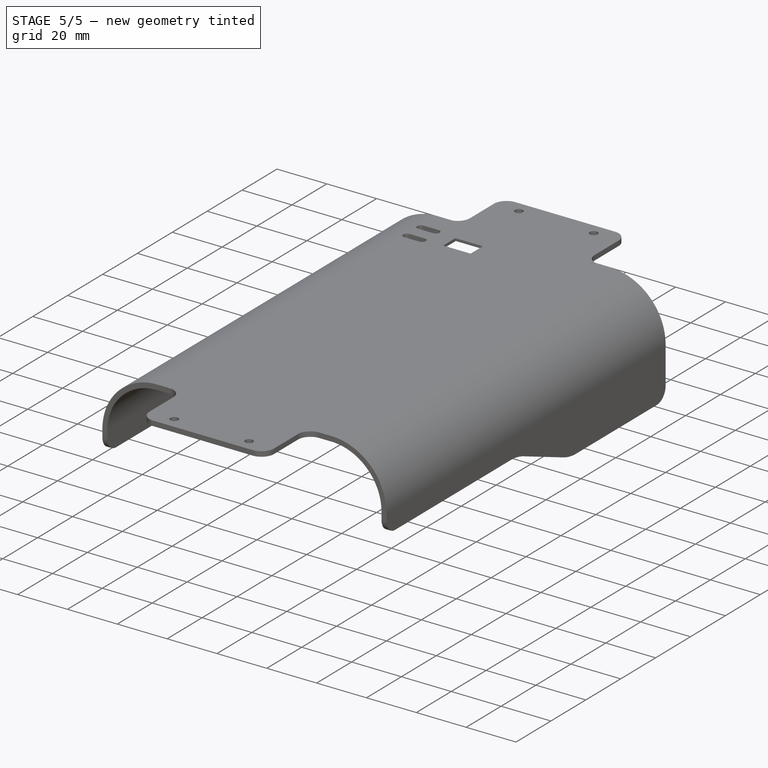
[diagram: stage 5 of 5 — iso view after this stage's code; geometry added in this stage tinted green]
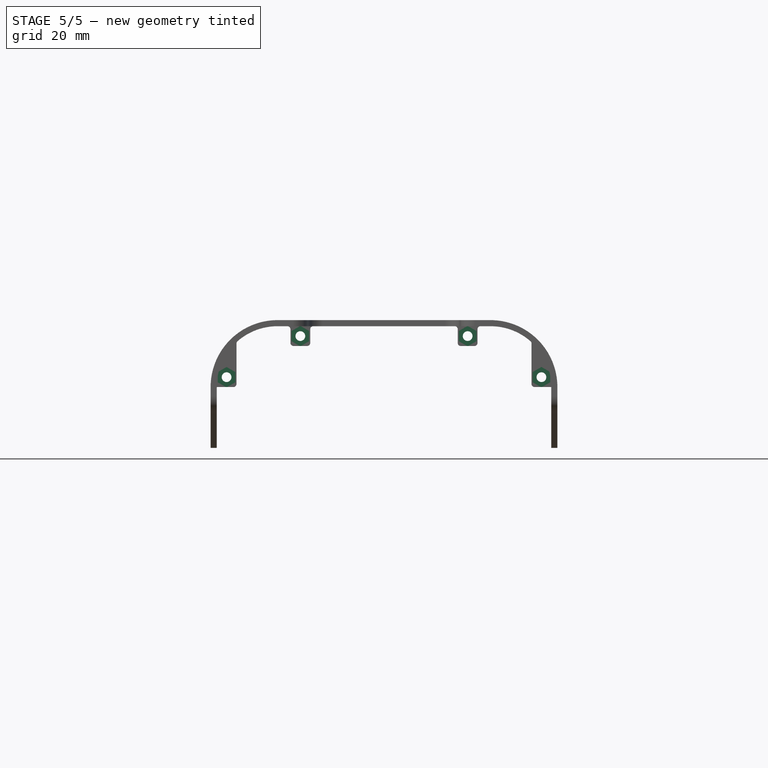
[diagram: stage 5 of 5 — front view after this stage's code; geometry added in this stage tinted green]
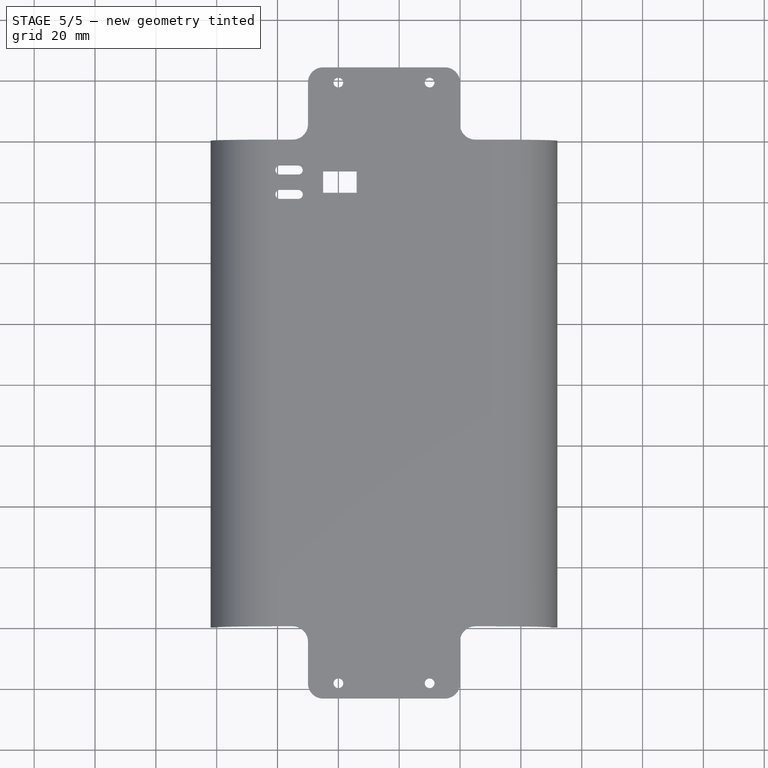
[diagram: stage 5 of 5 — top view after this stage's code; geometry added in this stage tinted green]
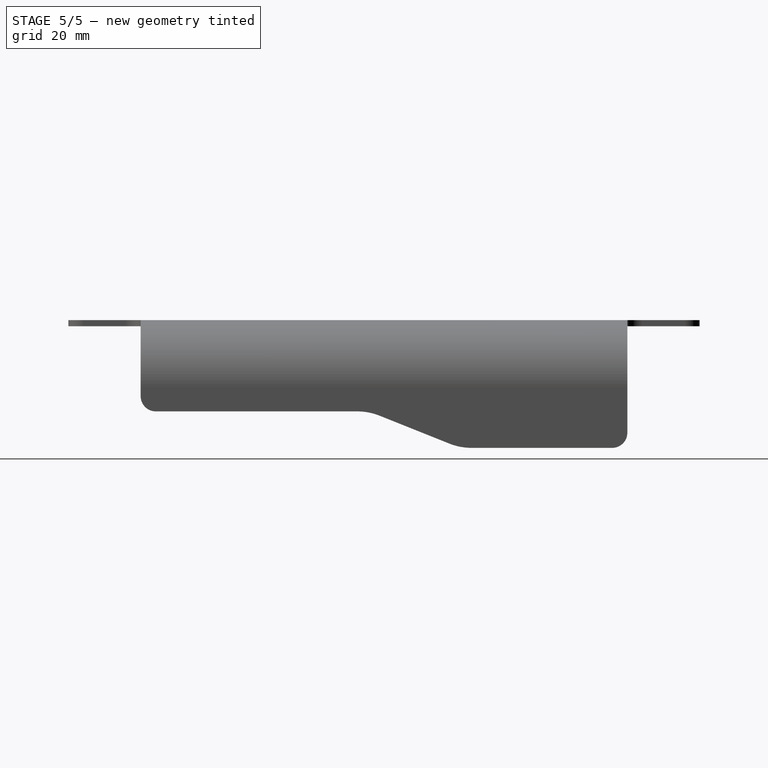
[diagram: stage 5 of 5 — right view after this stage's code; geometry added in this stage tinted green]
FEATURE [PartDesign::Fillet] Fillet069  label="Smooth Screwpad Edges001"
  Base = -> Pad214 [Edge35,Edge33,Edge137,Edge141,Edge145,Edge149,Edge182,Edge77,Edge73,Edge71,Edge75,Edge123]
  BaseFeature = -> Pad214
  Radius = 1
FEATURE [PartDesign::Fillet] Fillet070  label="Smooth Screwpad Edges Side Details001"
  Base = -> Fillet069 [Edge23,Edge202]
  BaseFeature = -> Fillet069
  Radius = 0.2
FEATURE [Sketcher::SketchObject] Sketch419
  MapMode = 5
  Placement = pos=(-8.12e-14,114.35,8.35e-14) rot=(0,0.707107,0.707107;3.14159rad)
  Support = -> [Fillet070]
  sketch-geometry (4):
    g0: Circle CenterX=-106.75 CenterY=23.25 CenterZ=0 NormalX=0 NormalY=0 NormalZ=1 AngleXU=0 Radius=1.6
    g1: Circle CenterX=-82.5 CenterY=36.75 CenterZ=0 NormalX=0 NormalY=0 NormalZ=1 AngleXU=0 Radius=1.6
    g2: Circle CenterX=-27.5 CenterY=36.75 CenterZ=0 NormalX=0 NormalY=0 NormalZ=1 AngleXU=0 Radius=1.6
    g3: Circle CenterX=-3.25 CenterY=23.25 CenterZ=0 NormalX=0 NormalY=0 NormalZ=1 AngleXU=0 Radius=1.6
  constraints (12):
    c: Equal(g0,g1)
    c: Equal(g1,g2)
    c: Equal(g2,g3)
    c: DistanceX(g1,g2) = 55
    c: DistanceX(g3,g-1) = 3.25
    c: DistanceY(g-1,g3) = 23.25
    c: DistanceX(g0,g3) = 103.5
    c: Horizontal(g3,g0)
    c: Horizontal(g1,g2)
    c: DistanceX(g2,g-1) = 27.5
    c: DistanceY(g-1,g2) = 36.75
    c: Radius(g3) = 1.6
FEATURE [PartDesign::Pocket] Pocket202  label="Screwholes Connection001"
  BaseFeature = -> Fillet070
  Length = 11
  Length2 = 100
  Profile = -> Sketch419
  Type = 0
FEATURE [Sketcher::SketchObject] Sketch422
  MapMode = 5
  Placement = pos=(-8.12e-14,114.35,8.35e-14) rot=(0,0.707107,0.707107;3.14159rad)
  Support = -> [Pocket202]
  sketch-geometry (4):
    g0: Circle CenterX=-106.75 CenterY=23.25 CenterZ=0 NormalX=0 NormalY=0 NormalZ=1 AngleXU=0 Radius=2.85
    g1: Circle CenterX=-82.5 CenterY=36.75 CenterZ=0 NormalX=0 NormalY=0 NormalZ=1 AngleXU=0 Radius=2.85
    g2: Circle CenterX=-27.5 CenterY=36.75 CenterZ=0 NormalX=0 NormalY=0 NormalZ=1 AngleXU=0 Radius=2.85
    g3: Circle CenterX=-3.25 CenterY=23.25 CenterZ=0 NormalX=0 NormalY=0 NormalZ=1 AngleXU=0 Radius=2.85
  constraints (12):
    c: Equal(g0,g1)
    c: Equal(g1,g2)
    c: Equal(g2,g3)
    c: Radius(g3) = 2.85
    c: DistanceX(g3,g-1) = 3.25
    c: Horizontal(g3,g0)
    c: Horizontal(g1,g2)
    c: DistanceX(g0,g3) = 103.5
    c: DistanceX(g1,g2) = 55
    c: DistanceY(g-1,g2) = 36.75
    c: DistanceX(g2,g-1) = 27.5
    c: DistanceY(g-1,g3) = 23.25
FEATURE [PartDesign::Pocket] Pocket200  label="Screwheads Connection001"
  BaseFeature = -> Pocket202
  Length = 3
  Length2 = 100
  Profile = -> Sketch422
  Type = 0
FEATURE [Sketcher::SketchObject] Sketch421
  MapMode = 5
  Placement = pos=(7.34e-14,103.35,7.54e-14) rot=(1,0,0;1.5708rad)
  Support = -> [Pocket200]
  sketch-geometry (28):
    g0: LineSegment StartX=3.25 StartY=26.5986 StartZ=0 EndX=0.35 EndY=24.9243 EndZ=0
    g1: LineSegment StartX=0.35 StartY=24.9243 StartZ=0 EndX=0.35 EndY=21.5757 EndZ=0
    g2: LineSegment StartX=0.35 StartY=21.5757 StartZ=0 EndX=3.25 EndY=19.9014 EndZ=0
    g3: LineSegment StartX=3.25 StartY=19.9014 StartZ=0 EndX=6.15 EndY=21.5757 EndZ=0
    g4: LineSegment StartX=6.15 StartY=21.5757 StartZ=0 EndX=6.15 EndY=24.9243 EndZ=0
    g5: LineSegment StartX=6.15 StartY=24.9243 StartZ=0 EndX=3.25 EndY=26.5986 EndZ=0
    g6: Circle [constr] CenterX=3.25 CenterY=23.25 CenterZ=0 NormalX=0 NormalY=0 NormalZ=1 AngleXU=0 Radius=3.34863
    g7: LineSegment StartX=27.5 StartY=40.0986 StartZ=0 EndX=24.6 EndY=38.4243 EndZ=0
    g8: LineSegment StartX=24.6 StartY=38.4243 StartZ=0 EndX=24.6 EndY=35.0757 EndZ=0
    g9: LineSegment StartX=24.6 StartY=35.0757 StartZ=0 EndX=27.5 EndY=33.4014 EndZ=0
    g10: LineSegment StartX=27.5 StartY=33.4014 StartZ=0 EndX=30.4 EndY=35.0757 EndZ=0
    g11: LineSegment StartX=30.4 StartY=35.0757 StartZ=0 EndX=30.4 EndY=38.4243 EndZ=0
    g12: LineSegment StartX=30.4 StartY=38.4243 StartZ=0 EndX=27.5 EndY=40.0986 EndZ=0
    g13: Circle [constr] CenterX=27.5 CenterY=36.75 CenterZ=0 NormalX=0 NormalY=0 NormalZ=1 AngleXU=0 Radius=3.34863
    g14: LineSegment StartX=85.4 StartY=38.4243 StartZ=0 EndX=82.5 EndY=40.0986 EndZ=0
    g15: LineSegment StartX=82.5 StartY=40.0986 StartZ=0 EndX=79.6 EndY=38.4243 EndZ=0
    g16: LineSegment StartX=79.6 StartY=38.4243 StartZ=0 EndX=79.6 EndY=35.0757 EndZ=0
    g17: LineSegment StartX=79.6 StartY=35.0757 StartZ=0 EndX=82.5 EndY=33.4014 EndZ=0
    g18: LineSegment StartX=82.5 StartY=33.4014 StartZ=0 EndX=85.4 EndY=35.0757 EndZ=0
    g19: LineSegment StartX=85.4 StartY=35.0757 StartZ=0 EndX=85.4 EndY=38.4243 EndZ=0
    g20: Circle [constr] CenterX=82.5 CenterY=36.75 CenterZ=0 NormalX=0 NormalY=0 NormalZ=1 AngleXU=0 Radius=3.34863
    g21: LineSegment StartX=106.75 StartY=26.5986 StartZ=0 EndX=103.85 EndY=24.9243 EndZ=0
    g22: LineSegment StartX=103.85 StartY=24.9243 StartZ=0 EndX=103.85 EndY=21.5757 EndZ=0
    g23: LineSegment StartX=103.85 StartY=21.5757 StartZ=0 EndX=106.75 EndY=19.9014 EndZ=0
    g24: LineSegment StartX=106.75 StartY=19.9014 StartZ=0 EndX=109.65 EndY=21.5757 EndZ=0
    g25: LineSegment StartX=109.65 StartY=21.5757 StartZ=0 EndX=109.65 EndY=24.9243 EndZ=0
    g26: LineSegment StartX=109.65 StartY=24.9243 StartZ=0 EndX=106.75 EndY=26.5986 EndZ=0
    g27: Circle [constr] CenterX=106.75 CenterY=23.25 CenterZ=0 NormalX=0 NormalY=0 NormalZ=1 AngleXU=0 Radius=3.34863
  constraints (68):
    c: Coincident(g0,g1)
    c: Coincident(g1,g2)
    c: Coincident(g2,g3)
    c: Coincident(g3,g4)
    c: Coincident(g4,g5)
    c: Coincident(g5,g0)
    c: Equal(g0, g1-g5) x5
    c: PointOnObject(g0,g6)
    c: PointOnObject(g1,g6)
    c: PointOnObject(g2,g6)
    c: PointOnObject(g3,g6)
    c: PointOnObject(g4,g6)
    c: PointOnObject(g5,g6)
    c: Coincident(g7,g8)
    c: Coincident(g8,g9)
    c: Coincident(g9,g10)
    c: Coincident(g10,g11)
    c: Coincident(g11,g12)
    c: Coincident(g12,g7)
    c: Equal(g7, g8-g12) x5
    c: PointOnObject(g7,g13)
    c: PointOnObject(g8,g13)
    c: PointOnObject(g9,g13)
    c: PointOnObject(g10,g13)
    c: PointOnObject(g11,g13)
    c: PointOnObject(g12,g13)
    c: Coincident(g14,g15)
    c: Coincident(g15,g16)
    c: Coincident(g16,g17)
    c: Coincident(g17,g18)
    c: Coincident(g18,g19)
    c: Coincident(g19,g14)
    c: Equal(g14, g15-g19) x5
    c: PointOnObject(g14,g20)
    c: PointOnObject(g15,g20)
    c: PointOnObject(g16,g20)
    c: PointOnObject(g17,g20)
    c: PointOnObject(g18,g20)
    c: PointOnObject(g19,g20)
    c: Coincident(g21,g22)
    c: Coincident(g22,g23)
    c: Coincident(g23,g24)
    c: Coincident(g24,g25)
    c: Coincident(g25,g26)
    c: Coincident(g26,g21)
    c: Equal(g21, g22-g26) x5
    c: PointOnObject(g21,g27)
    c: PointOnObject(g22,g27)
    c: PointOnObject(g23,g27)
    c: PointOnObject(g24,g27)
    c: PointOnObject(g25,g27)
    c: PointOnObject(g26,g27)
    c: Equal(g6,g13)
    c: Equal(g13,g20)
    c: Equal(g20,g27)
    c: Vertical(g22)
    c: Vertical(g19)
    c: Vertical(g11)
    c: Vertical(g4)
    c: Horizontal(g27,g6)
    c: Horizontal(g13,g20)
    c: DistanceX(g13,g20) = 55
    c: DistanceX(g6,g27) = 103.5
    c: DistanceX(g-1,g6) = 3.25
    c: DistanceY(g-1,g6) = 23.25
    c: DistanceY(g-1,g13) = 36.75
    c: DistanceX(g-1,g13) = 27.5
    c: DistanceX(g0,g4) = 5.8
FEATURE [PartDesign::Pocket] Pocket201  label="Nutholes Connection001"
  BaseFeature = -> Pocket200
  Length = 2.5
  Length2 = 100
  Profile = -> Sketch421
  Type = 0
FEATURE [Sketcher::SketchObject] Sketch437
  MapMode = 5
  Placement = pos=(0,0,42) rot=(0,0,1;0rad)
  Support = -> [Pocket201]
  sketch-geometry (12):
    g0: ArcOfCircle CenterX=20.8 CenterY=150 CenterZ=0 NormalX=0 NormalY=0 NormalZ=1 AngleXU=0 Radius=1.5 StartAngle=1.5708 EndAngle=4.71239
    g1: ArcOfCircle CenterX=26.8 CenterY=150 CenterZ=0 NormalX=0 NormalY=0 NormalZ=1 AngleXU=0 Radius=1.5 StartAngle=4.71239 EndAngle=7.85398
    g2: LineSegment StartX=20.8 StartY=148.5 StartZ=0 EndX=26.8 EndY=148.5 EndZ=0
    g3: LineSegment StartX=20.8 StartY=151.5 StartZ=0 EndX=26.8 EndY=151.5 EndZ=0
    g4: ArcOfCircle CenterX=20.8 CenterY=142 CenterZ=0 NormalX=0 NormalY=0 NormalZ=1 AngleXU=0 Radius=1.5 StartAngle=1.5708 EndAngle=4.71239
    g5: ArcOfCircle CenterX=26.8 CenterY=142 CenterZ=0 NormalX=0 NormalY=0 NormalZ=1 AngleXU=0 Radius=1.5 StartAngle=4.71239 EndAngle=7.85398
    g6: LineSegment StartX=20.8 StartY=140.5 StartZ=0 EndX=26.8 EndY=140.5 EndZ=0
    g7: LineSegment StartX=20.8 StartY=143.5 StartZ=0 EndX=26.8 EndY=143.5 EndZ=0
    g8: LineSegment StartX=35 StartY=142.5 StartZ=0 EndX=46 EndY=142.5 EndZ=0
    g9: LineSegment StartX=46 StartY=142.5 StartZ=0 EndX=46 EndY=149.5 EndZ=0
    g10: LineSegment StartX=46 StartY=149.5 StartZ=0 EndX=35 EndY=149.5 EndZ=0
    g11: LineSegment StartX=35 StartY=149.5 StartZ=0 EndX=35 EndY=142.5 EndZ=0
  constraints (32):
    c: Tangent(g0,g3) = 1.5708
    c: Tangent(g0,g2) = -1.5708
    c: Tangent(g2,g1) = -1.5708
    c: Tangent(g3,g1) = 1.5708
    c: Horizontal(g2)
    c: Equal(g0,g1)
    c: Tangent(g4,g7) = 1.5708
    c: Tangent(g4,g6) = -1.5708
    c: Tangent(g6,g5) = -1.5708
    c: Tangent(g7,g5) = 1.5708
    c: Horizontal(g6)
    c: Equal(g4,g5)
    c: Vertical(g4,g0)
    c: Vertical(g5,g1)
    c: Equal(g1,g5)
    c: Radius(g5) = 1.5
    c: DistanceX(g3,g3) = 6
    c: DistanceY(g5,g1) = 8
    c: DistanceY(g-1,g1) = 150
    c: DistanceX(g-1,g0) = 20.8
    c: Coincident(g8,g9)
    c: Coincident(g9,g10)
    c: Coincident(g10,g11)
    c: Coincident(g11,g8)
    c: Horizontal(g8)
    c: Horizontal(g10)
    c: Vertical(g9)
    c: Vertical(g11)
    c: DistanceX(g5,g8) = 8.2
    c: DistanceY(g11,g11) = 7
    c: DistanceX(g10,g10) = 11
    c: DistanceY(g5,g8) = 0.5
FEATURE [PartDesign::Pocket] Pocket216  label="Charger and USB-Port001"
  BaseFeature = -> Pocket201
  Length = 5
  Length2 = 100
  Profile = -> Sketch437
  Type = 0
FEATURE [Sketcher::SketchObject] Sketch441
  MapMode = 5
  Placement = pos=(0,0,40) rot=(1,0,0;3.14159rad)
  Support = -> [Pocket216]
  sketch-geometry (4):
    g0: LineSegment StartX=32 StartY=-152.5 StartZ=0 EndX=49 EndY=-152.5 EndZ=0
    g1: LineSegment StartX=49 StartY=-152.5 StartZ=0 EndX=49 EndY=-139.5 EndZ=0
    g2: LineSegment StartX=49 StartY=-139.5 StartZ=0 EndX=32 EndY=-139.5 EndZ=0
    g3: LineSegment StartX=32 StartY=-139.5 StartZ=0 EndX=32 EndY=-152.5 EndZ=0
  constraints (12):
    c: Coincident(g0,g1)
    c: Coincident(g1,g2)
    c: Coincident(g2,g3)
    c: Coincident(g3,g0)
    c: Horizontal(g0)
    c: Horizontal(g2)
    c: Vertical(g1)
    c: Vertical(g3)
    c: DistanceY(g3,g3) = 13
    c: DistanceX(g0,g0) = 17
    c: DistanceX(g-1,g2) = 32
    c: DistanceY(g2,g-1) = 139.5
FEATURE [PartDesign::Pocket] Pocket217  label="Charger Alignment001"
  BaseFeature = -> Pocket216
  Length = 1
  Length2 = 100
  Profile = -> Sketch441
  Type = 0
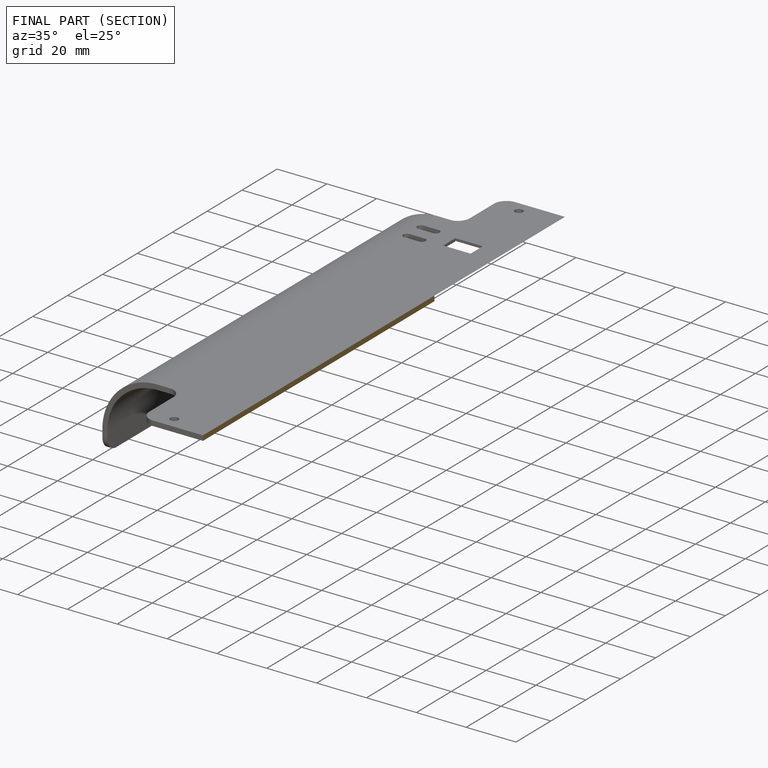
[diagram: finished part — half-section view (interior)]
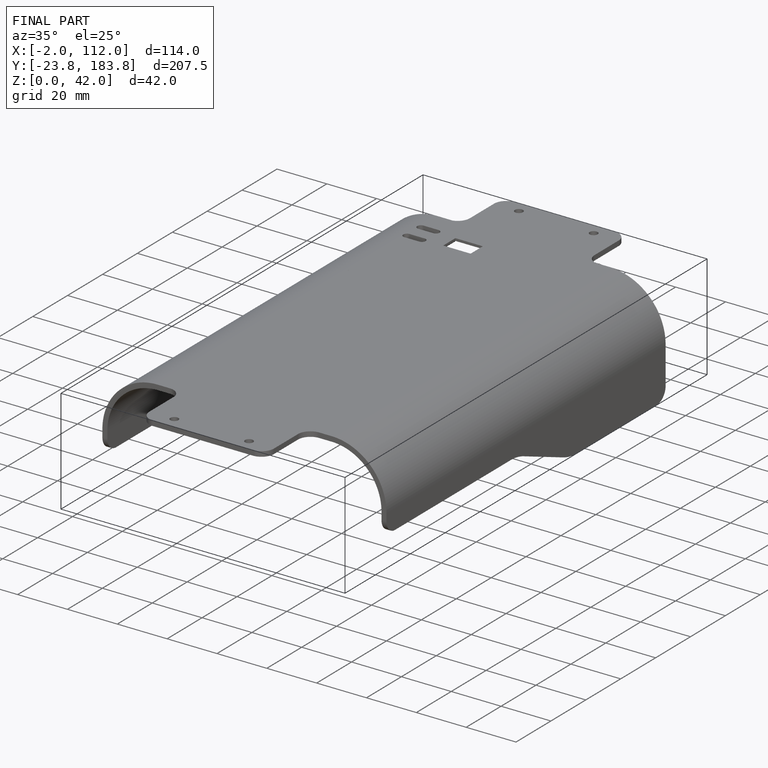
[diagram: finished part — iso view with bounding-box wireframe]
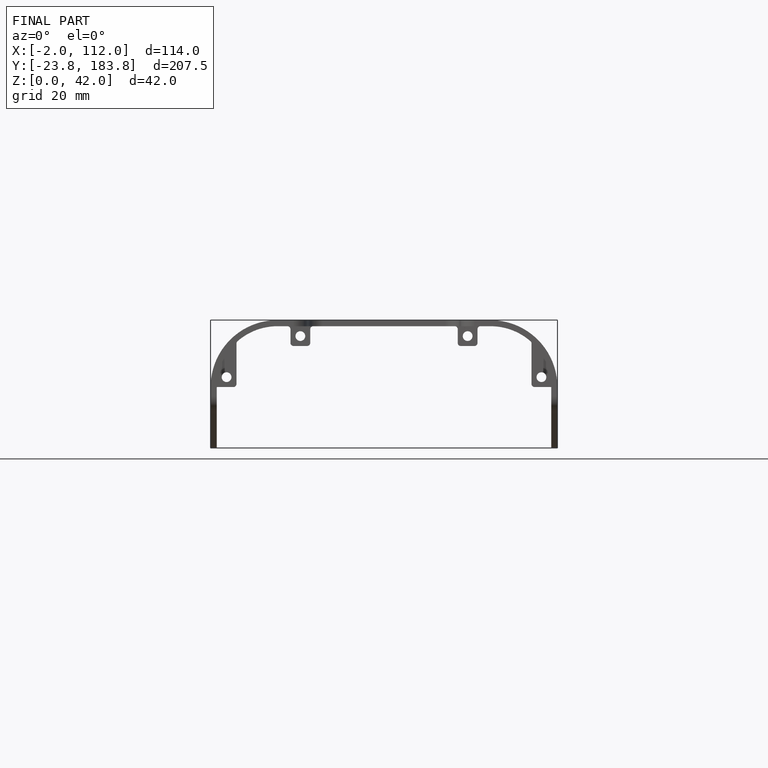
[diagram: finished part — front view with bounding-box wireframe]
